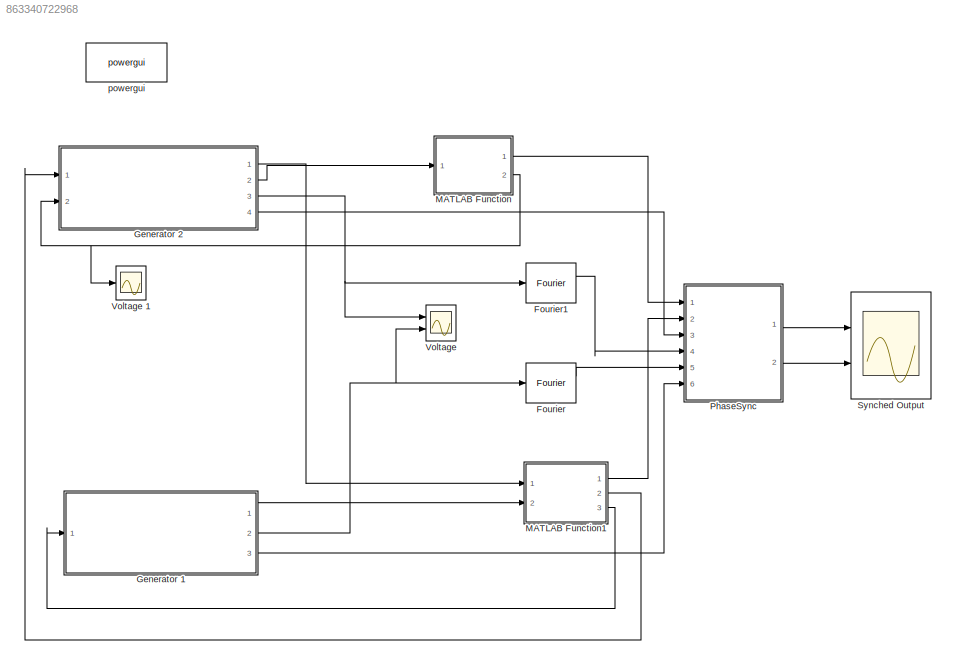
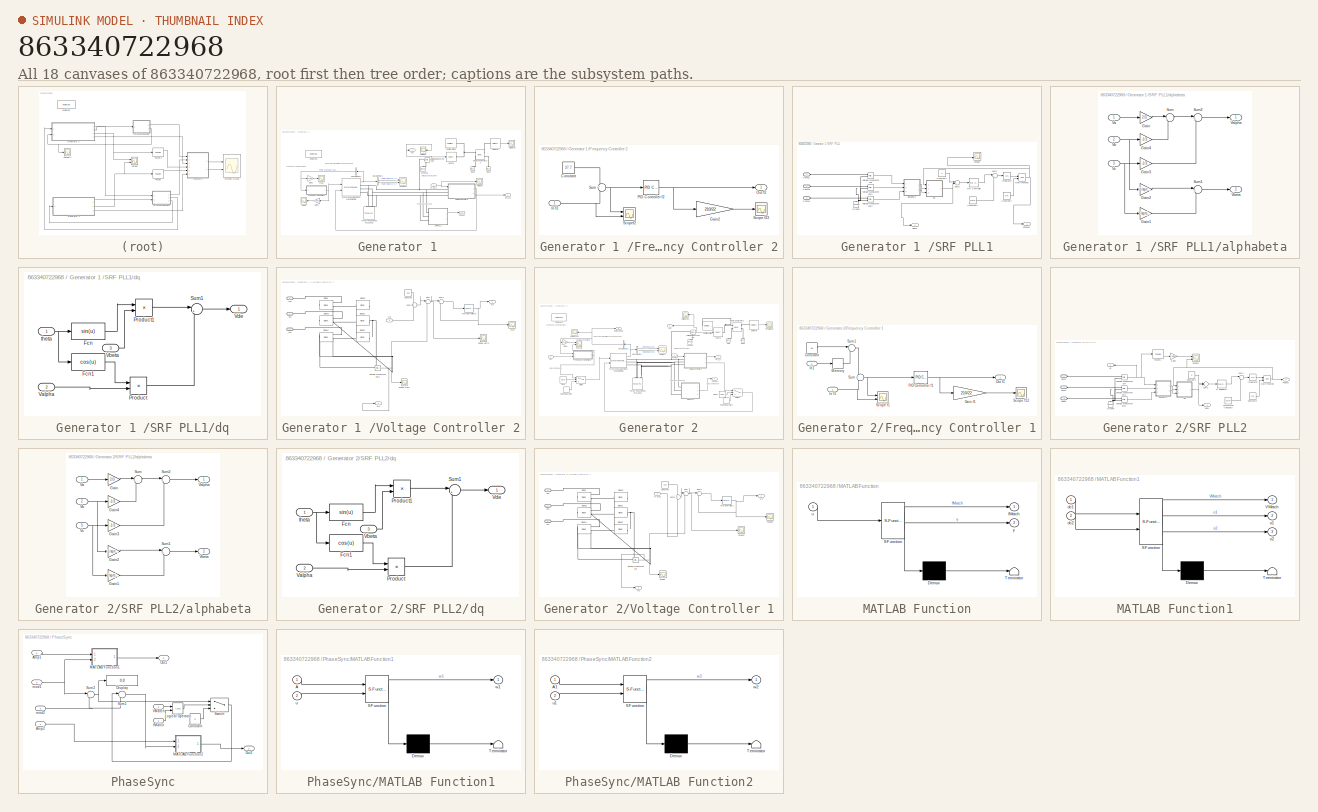
[diagram: thumbnail index - all 18 canvases of the model, root first then tree order]
MODEL slx_863340722968
KIND model
CONFIG AbsTol = auto
CONFIG EnableMultiTasking = off
CONFIG FixedStep = auto
CONFIG MaxStep = 1e-4
CONFIG MinStep = auto
CONFIG RelTol = 1e-3
CONFIG SampleTimeConstraint = Unconstrained
CONFIG Solver = VariableStepAuto
CONFIG SolverName = VariableStepAuto
CONFIG StartTime = 0.0
CONFIG StopTime = 50
BLOCK [Reference] Fourier  REF=powerlib_meascontrol/Measurements/Fourier
  Ports = [1, 2]
  SourceBlock = powerlib_meascontrol/Measurements/Fourier
  SourceProductBaseCode = PS
  SourceProductName = Simscape Power Systems
  SourceType = Fourier
BLOCK [Reference] Fourier1  REF=powerlib_meascontrol/Measurements/Fourier
  Ports = [1, 2]
  SourceBlock = powerlib_meascontrol/Measurements/Fourier
  SourceProductBaseCode = PS
  SourceProductName = Simscape Power Systems
  SourceType = Fourier
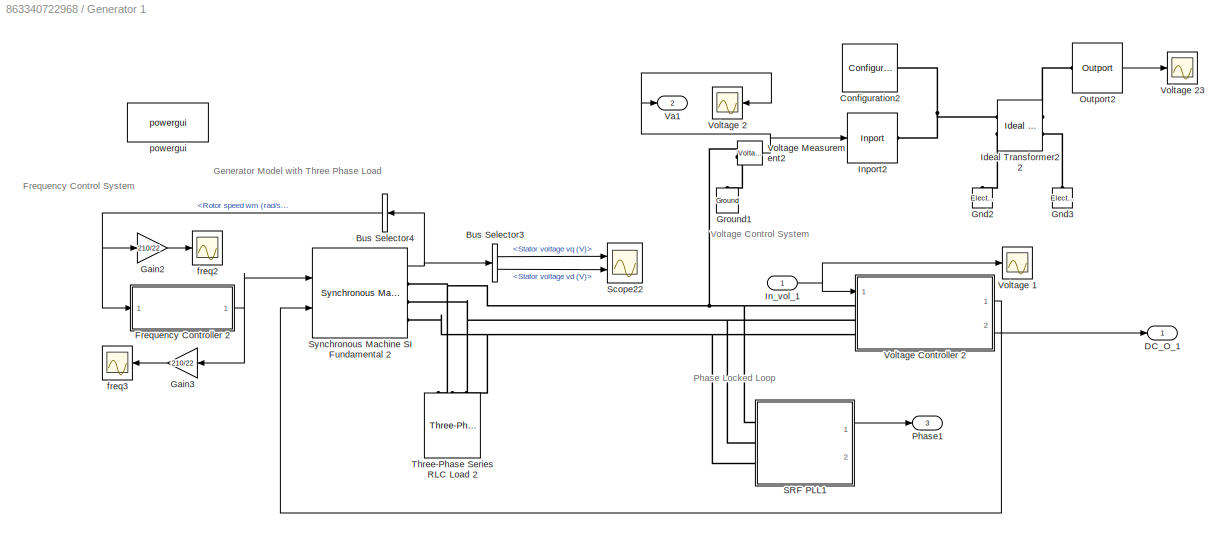
BLOCK [SubSystem] Generator 1 
  Ports = [1, 3]
  RequestExecContextInheritance = off
  Variant = off
BLOCK [BusSelector] Generator 1 /Bus Selector3
  OutputAsBus = off
  OutputSignals = dq0 components.Stator voltage  vq (V),dq0 components.Stator voltage  vd (V)
  Ports = [1, 2]
BLOCK [BusSelector] Generator 1 /Bus Selector4
  OutputAsBus = off
  OutputSignals = Mechanical.Rotor speed  wm (rad/s)
  Ports = [1, 1]
BLOCK [Reference] Generator 1 /Configuration2  REF=simrfV2util1/Configuration
  Ports = [0, 0, 0, 0, 0, 1]
  SourceBlock = simrfV2util1/Configuration
  SourceProductBaseCode = RB
  SourceProductName = SimRF
  SourceType = Configuration
BLOCK [Outport] Generator 1 /DC_O_1 
  IconDisplay = Port number
BLOCK [SubSystem] Generator 1 /Frequency Controller 2
  Ports = [1, 1]
  RequestExecContextInheritance = off
  Variant = off
BLOCK [Constant] Generator 1 /Frequency Controller 2/Constant
  Value = 37.7
BLOCK [Gain] Generator 1 /Frequency Controller 2/Gain2
  Gain = 210/22
  OutDataTypeStr = Inherit: Inherit via internal rule
  ParamDataTypeStr = Inherit: Inherit via internal rule
  SaturateOnIntegerOverflow = off
BLOCK [Inport] Generator 1 /Frequency Controller 2/In f2
  IconDisplay = Port number
BLOCK [Outport] Generator 1 /Frequency Controller 2/Out f2
  IconDisplay = Port number
BLOCK [Reference] Generator 1 /Frequency Controller 2/PID Controller f2  REF=simulink/Continuous/PID Controller
  Ports = [1, 1]
  SourceBlock = simulink/Continuous/PID Controller
  SourceProductBaseCode = SL
  SourceProductName = Simulink
  SourceType = PID 1dof
BLOCK [Scope] Generator 1 /Frequency Controller 2/Scope f22
  NumInputPorts = 1
  Ports = [1]
  ScopeSpecificationString = Simulink.scopes.TimeScopeBlockCfg('CurrentConfiguration', extmgr.ConfigurationSet(extmgr.Configuration('Core','General UI',true),extmgr.Configuration('Core','Source UI',true),extmgr.Configuration('Sources','WiredSimulink',true,'DataLoggingVariableName','ScopeData1'),extmgr.Configuration('Visuals','Time Domain',true,'SerializedDisplays',{struct('MinYLimReal','-7.45272','MaxYLimReal','67.13413','YLa...<+1368ch>
BLOCK [Scope] Generator 1 /Frequency Controller 2/Scopef2
  NumInputPorts = 2
  Ports = [2]
  ScopeSpecificationString = Simulink.scopes.TimeScopeBlockCfg('CurrentConfiguration', extmgr.ConfigurationSet(extmgr.Configuration('Core','General UI',true),extmgr.Configuration('Core','Source UI',true),extmgr.Configuration('Sources','WiredSimulink',true,'DataLoggingVariableName','ScopeData2'),extmgr.Configuration('Visuals','Time Domain',true,'SerializedDisplays',{struct('MinYLimReal','-0.78339','MaxYLimReal','7.03339','YLab...<+1753ch>
BLOCK [Sum] Generator 1 /Frequency Controller 2/Sum
  IconShape = round
  InputSameDT = off
  Inputs = +-
  OutDataTypeStr = Inherit: Inherit via internal rule
  Ports = [2, 1]
  SaturateOnIntegerOverflow = off
BLOCK [Gain] Generator 1 /Gain2
  Gain = 210/22
  OutDataTypeStr = Inherit: Inherit via internal rule
  ParamDataTypeStr = Inherit: Inherit via internal rule
  SaturateOnIntegerOverflow = off
BLOCK [Gain] Generator 1 /Gain3
  Gain = 210/22
  OutDataTypeStr = Inherit: Inherit via internal rule
  ParamDataTypeStr = Inherit: Inherit via internal rule
  SaturateOnIntegerOverflow = off
BLOCK [Reference] Generator 1 /Gnd2  REF=simrfV2_lib/Elements/Electrical Reference
  Ports = [0, 0, 0, 0, 0, 1]
  SourceBlock = simrfV2_lib/Elements/Electrical Reference
  SourceType = Electrical Reference
BLOCK [Reference] Generator 1 /Gnd3  REF=simrfV2_lib/Elements/Electrical Reference
  Ports = [0, 0, 0, 0, 0, 1]
  SourceBlock = simrfV2_lib/Elements/Electrical Reference
  SourceType = Electrical Reference
BLOCK [Reference] Generator 1 /Ground1  REF=powerlib/Elements/Ground
  Ports = [0, 0, 0, 0, 0, 1]
  SourceBlock = powerlib/Elements/Ground
  SourceProductBaseCode = PS
  SourceProductName = Simscape Power Systems
  SourceType = Ground
BLOCK [Reference] Generator 1 /Ideal Transformer22  REF=simrfV2_lib/Elements/Ideal
Transformer
  Ports = [0, 0, 0, 0, 0, 2, 2]
  SourceBlock = simrfV2_lib/Elements/Ideal\nTransformer
  SourceType = Ideal\nTransformer
BLOCK [Inport] Generator 1 /In_vol_1 
  IconDisplay = Port number
BLOCK [Reference] Generator 1 /Inport2  REF=simrfV2util1/Inport
  Ports = [1, 0, 0, 0, 0, 0, 1]
  SourceBlock = simrfV2util1/Inport
  SourceProductBaseCode = RB
  SourceProductName = SimRF
  SourceType = Inport
BLOCK [Reference] Generator 1 /Outport2  REF=simrfV2util1/Outport
  Ports = [0, 1, 0, 0, 0, 1]
  SourceBlock = simrfV2util1/Outport
  SourceProductBaseCode = RB
  SourceProductName = SimRF
  SourceType = Outport
BLOCK [Outport] Generator 1 /Phase1
  IconDisplay = Port number
  Port = 3
BLOCK [SubSystem] Generator 1 /SRF PLL1
  Ports = [0, 2, 0, 0, 0, 3]
  RequestExecContextInheritance = off
  Variant = off
BLOCK [PMIOPort] Generator 1 /SRF PLL1/Conn11
  Port = 1
  Side = Left
BLOCK [PMIOPort] Generator 1 /SRF PLL1/Conn12
  Port = 2
  Side = Left
BLOCK [PMIOPort] Generator 1 /SRF PLL1/Conn13
  Port = 3
  Side = Left
BLOCK [Constant] Generator 1 /SRF PLL1/Constant1
  Value = 0
BLOCK [Constant] Generator 1 /SRF PLL1/Constant2
  Value = 120*pi
BLOCK [Constant] Generator 1 /SRF PLL1/Constant3
  Value = 2*pi
BLOCK [Reference] Generator 1 /SRF PLL1/Ground  REF=powerlib/Elements/Ground
  Ports = [0, 0, 0, 0, 0, 1]
  SourceBlock = powerlib/Elements/Ground
  SourceProductBaseCode = PS
  SourceProductName = Simscape Power Systems
  SourceType = Ground
BLOCK [Integrator] Generator 1 /SRF PLL1/Integrator
  Ports = [1, 1]
BLOCK [Math] Generator 1 /SRF PLL1/Math Function
  Operator = mod
  Ports = [2, 1]
BLOCK [Reference] Generator 1 /SRF PLL1/PID Controller  REF=simulink/Continuous/PID Controller
  Ports = [1, 1]
  SourceBlock = simulink/Continuous/PID Controller
  SourceProductBaseCode = SL
  SourceProductName = Simulink
  SourceType = PID 1dof
BLOCK [Outport] Generator 1 /SRF PLL1/Phase11
  IconDisplay = Port number
BLOCK [Scope] Generator 1 /SRF PLL1/Scope1
  NumInputPorts = 2
  Ports = [2]
  ScopeSpecificationString = Simulink.scopes.TimeScopeBlockCfg('CurrentConfiguration', extmgr.ConfigurationSet(extmgr.Configuration('Core','General UI',true),extmgr.Configuration('Core','Source UI',true),extmgr.Configuration('Sources','WiredSimulink',true),extmgr.Configuration('Visuals','Time Domain',true,'SerializedDisplays',{struct('MinYLimReal','-190.00196','MaxYLimReal','1710.0176','YLabelReal','','MinYLimMag',' 0.00000',...<+1477ch>
BLOCK [Sum] Generator 1 /SRF PLL1/Sum1
  IconShape = round
  InputSameDT = off
  Inputs = |++
  OutDataTypeStr = Inherit: Inherit via internal rule
  Ports = [2, 1]
  SaturateOnIntegerOverflow = off
BLOCK [Sum] Generator 1 /SRF PLL1/Sum2
  IconShape = round
  InputSameDT = off
  Inputs = |+-
  OutDataTypeStr = Inherit: Inherit via internal rule
  Ports = [2, 1]
  SaturateOnIntegerOverflow = off
BLOCK [Outport] Generator 1 /SRF PLL1/Vde11
  IconDisplay = Port number
  Port = 2
BLOCK [Reference] Generator 1 /SRF PLL1/Voltage Measurement  REF=powerlib/Measurements/Voltage Measurement
  Ports = [0, 1, 0, 0, 0, 2]
  SourceBlock = powerlib/Measurements/Voltage Measurement
  SourceProductBaseCode = PS
  SourceProductName = Simscape Power Systems
  SourceType = Voltage Measurement
  UserDataPersistent = on
BLOCK [Reference] Generator 1 /SRF PLL1/Voltage Measurement1  REF=powerlib/Measurements/Voltage Measurement
  Ports = [0, 1, 0, 0, 0, 2]
  SourceBlock = powerlib/Measurements/Voltage Measurement
  SourceProductBaseCode = PS
  SourceProductName = Simscape Power Systems
  SourceType = Voltage Measurement
  UserDataPersistent = on
BLOCK [Reference] Generator 1 /SRF PLL1/Voltage Measurement2  REF=powerlib/Measurements/Voltage Measurement
  Ports = [0, 1, 0, 0, 0, 2]
  SourceBlock = powerlib/Measurements/Voltage Measurement
  SourceProductBaseCode = PS
  SourceProductName = Simscape Power Systems
  SourceType = Voltage Measurement
  UserDataPersistent = on
BLOCK [SubSystem] Generator 1 /SRF PLL1/alphabeta
  Ports = [3, 2]
  RequestExecContextInheritance = off
  Variant = off
BLOCK [Gain] Generator 1 /SRF PLL1/alphabeta/Gain
  Gain = 2/3
  OutDataTypeStr = Inherit: Inherit via internal rule
  ParamDataTypeStr = Inherit: Inherit via internal rule
  SaturateOnIntegerOverflow = off
BLOCK [Gain] Generator 1 /SRF PLL1/alphabeta/Gain1
  Gain = 1/sqrt(3)
  OutDataTypeStr = Inherit: Inherit via internal rule
  ParamDataTypeStr = Inherit: Inherit via internal rule
  SaturateOnIntegerOverflow = off
BLOCK [Gain] Generator 1 /SRF PLL1/alphabeta/Gain2
  Gain = -1/sqrt(3)
  OutDataTypeStr = Inherit: Inherit via internal rule
  ParamDataTypeStr = Inherit: Inherit via internal rule
  SaturateOnIntegerOverflow = off
BLOCK [Gain] Generator 1 /SRF PLL1/alphabeta/Gain3
  Gain = -1/3
  OutDataTypeStr = Inherit: Inherit via internal rule
  ParamDataTypeStr = Inherit: Inherit via internal rule
  SaturateOnIntegerOverflow = off
BLOCK [Gain] Generator 1 /SRF PLL1/alphabeta/Gain4
  Gain = -1/3
  OutDataTypeStr = Inherit: Inherit via internal rule
  ParamDataTypeStr = Inherit: Inherit via internal rule
  SaturateOnIntegerOverflow = off
BLOCK [Sum] Generator 1 /SRF PLL1/alphabeta/Sum
  IconShape = round
  InputSameDT = off
  Inputs = |++
  OutDataTypeStr = Inherit: Inherit via internal rule
  Ports = [2, 1]
  SaturateOnIntegerOverflow = off
BLOCK [Sum] Generator 1 /SRF PLL1/alphabeta/Sum1
  IconShape = round
  InputSameDT = off
  Inputs = |++
  OutDataTypeStr = Inherit: Inherit via internal rule
  Ports = [2, 1]
  SaturateOnIntegerOverflow = off
BLOCK [Sum] Generator 1 /SRF PLL1/alphabeta/Sum2
  IconShape = round
  InputSameDT = off
  Inputs = |++
  OutDataTypeStr = Inherit: Inherit via internal rule
  Ports = [2, 1]
  SaturateOnIntegerOverflow = off
BLOCK [Inport] Generator 1 /SRF PLL1/alphabeta/Va
  IconDisplay = Port number
BLOCK [Outport] Generator 1 /SRF PLL1/alphabeta/Valpha
  IconDisplay = Port number
BLOCK [Inport] Generator 1 /SRF PLL1/alphabeta/Vb
  IconDisplay = Port number
  Port = 2
BLOCK [Outport] Generator 1 /SRF PLL1/alphabeta/Vbeta
  IconDisplay = Port number
  Port = 2
BLOCK [Inport] Generator 1 /SRF PLL1/alphabeta/Vc
  IconDisplay = Port number
  Port = 3
BLOCK [SubSystem] Generator 1 /SRF PLL1/dq
  Ports = [3, 1]
  RequestExecContextInheritance = off
  Variant = off
BLOCK [Fcn] Generator 1 /SRF PLL1/dq/Fcn
  Expr = sin(u)
BLOCK [Fcn] Generator 1 /SRF PLL1/dq/Fcn1
  Expr = cos(u)
BLOCK [Product] Generator 1 /SRF PLL1/dq/Product
  InputSameDT = off
  OutDataTypeStr = Inherit: Inherit via internal rule
  Ports = [2, 1]
  RndMeth = Floor
  SaturateOnIntegerOverflow = off
BLOCK [Product] Generator 1 /SRF PLL1/dq/Product1
  InputSameDT = off
  OutDataTypeStr = Inherit: Inherit via internal rule
  Ports = [2, 1]
  RndMeth = Floor
  SaturateOnIntegerOverflow = off
BLOCK [Sum] Generator 1 /SRF PLL1/dq/Sum1
  IconShape = round
  InputSameDT = off
  Inputs = |+-
  OutDataTypeStr = Inherit: Inherit via internal rule
  Ports = [2, 1]
  SaturateOnIntegerOverflow = off
BLOCK [Inport] Generator 1 /SRF PLL1/dq/Valpha
  IconDisplay = Port number
  Port = 2
BLOCK [Inport] Generator 1 /SRF PLL1/dq/Vbeta
  IconDisplay = Port number
  Port = 3
BLOCK [Outport] Generator 1 /SRF PLL1/dq/Vde
  IconDisplay = Port number
BLOCK [Inport] Generator 1 /SRF PLL1/dq/theta
  IconDisplay = Port number
BLOCK [Scope] Generator 1 /Scope22
  NumInputPorts = 2
  Ports = [2]
  ScopeSpecificationString = Simulink.scopes.TimeScopeBlockCfg('CurrentConfiguration', extmgr.ConfigurationSet(extmgr.Configuration('Core','General UI',true),extmgr.Configuration('Core','Source UI',true),extmgr.Configuration('Sources','WiredSimulink',true,'DataLoggingVariableName','ScopeData2'),extmgr.Configuration('Visuals','Time Domain',true,'SerializedDisplays',{struct('MinYLimReal','-10492814620799703000000000000000000000...<+2122ch>
BLOCK [Reference] Generator 1 /Synchronous Machine SI Fundamental 2  REF=powerlib/Machines/Synchronous Machine
SI Fundamental
  Ports = [2, 1, 0, 0, 0, 0, 3]
  SourceBlock = powerlib/Machines/Synchronous Machine\nSI Fundamental
  SourceProductBaseCode = PS
  SourceProductName = Simscape Power Systems
  SourceType = Synchronous Machine
BLOCK [Reference] Generator 1 /Three-Phase Series RLC Load 2  REF=powerlib/Elements/Three-Phase
Series RLC Load
  AttributesFormatString = \n
  Ports = [0, 0, 0, 0, 0, 3]
  SourceBlock = powerlib/Elements/Three-Phase\nSeries RLC Load
  SourceProductBaseCode = PS
  SourceProductName = Simscape Power Systems
  SourceType = Three-Phase Series RLC Load
BLOCK [Outport] Generator 1 /Va1 
  IconDisplay = Port number
  Port = 2
BLOCK [Scope] Generator 1 /Voltage 1
  NumInputPorts = 1
  Ports = [1]
  ScopeSpecificationString = Simulink.scopes.TimeScopeBlockCfg('CurrentConfiguration', extmgr.ConfigurationSet(extmgr.Configuration('Core','General UI',true),extmgr.Configuration('Core','Source UI',true),extmgr.Configuration('Sources','WiredSimulink',true,'DataLoggingVariableName','ScopeData1'),extmgr.Configuration('Visuals','Time Domain',true,'SerializedDisplays',{struct('MinYLimReal','-1.00000','MaxYLimReal','1.00000','YLab...<+2013ch>
BLOCK [Scope] Generator 1 /Voltage 2
  NumInputPorts = 1
  Ports = [1]
  ScopeSpecificationString = Simulink.scopes.TimeScopeBlockCfg('CurrentConfiguration', extmgr.ConfigurationSet(extmgr.Configuration('Core','General UI',true),extmgr.Configuration('Core','Source UI',true),extmgr.Configuration('Sources','WiredSimulink',true,'DataLoggingVariableName','ScopeData3'),extmgr.Configuration('Visuals','Time Domain',true,'SerializedDisplays',{struct('MinYLimReal','-193.25963','MaxYLimReal','193.2667','Y...<+1825ch>
BLOCK [Scope] Generator 1 /Voltage 23
  NumInputPorts = 1
  Ports = [1]
  ScopeSpecificationString = Simulink.scopes.TimeScopeBlockCfg('CurrentConfiguration', extmgr.ConfigurationSet(extmgr.Configuration('Core','General UI',true),extmgr.Configuration('Core','Source UI',true),extmgr.Configuration('Sources','WiredSimulink',true,'DataLoggingVariableName','ScopeData4'),extmgr.Configuration('Visuals','Time Domain',true,'SerializedDisplays',{struct('MinYLimReal','-21.15422','MaxYLimReal','21.15422','YL...<+2101ch>
BLOCK [SubSystem] Generator 1 /Voltage Controller 2
  Ports = [1, 2, 0, 0, 0, 3]
  RequestExecContextInheritance = off
  Variant = off
BLOCK [Constant] Generator 1 /Voltage Controller 2/Constant
  Value = 363
BLOCK [Reference] Generator 1 /Voltage Controller 2/Diode  REF=powerlib/Power
Electronics/Diode
  Ports = [0, 1, 0, 0, 0, 1, 1]
  SourceBlock = powerlib/Power\nElectronics/Diode
  SourceProductBaseCode = PS
  SourceProductName = Simscape Power Systems
  SourceType = Diode
BLOCK [Reference] Generator 1 /Voltage Controller 2/Diode1  REF=powerlib/Power
Electronics/Diode
  Ports = [0, 1, 0, 0, 0, 1, 1]
  SourceBlock = powerlib/Power\nElectronics/Diode
  SourceProductBaseCode = PS
  SourceProductName = Simscape Power Systems
  SourceType = Diode
BLOCK [Reference] Generator 1 /Voltage Controller 2/Diode2  REF=powerlib/Power
Electronics/Diode
  Ports = [0, 1, 0, 0, 0, 1, 1]
  SourceBlock = powerlib/Power\nElectronics/Diode
  SourceProductBaseCode = PS
  SourceProductName = Simscape Power Systems
  SourceType = Diode
BLOCK [Reference] Generator 1 /Voltage Controller 2/Diode3  REF=powerlib/Power
Electronics/Diode
  Ports = [0, 1, 0, 0, 0, 1, 1]
  SourceBlock = powerlib/Power\nElectronics/Diode
  SourceProductBaseCode = PS
  SourceProductName = Simscape Power Systems
  SourceType = Diode
BLOCK [Reference] Generator 1 /Voltage Controller 2/Diode4  REF=powerlib/Power
Electronics/Diode
  Ports = [0, 1, 0, 0, 0, 1, 1]
  SourceBlock = powerlib/Power\nElectronics/Diode
  SourceProductBaseCode = PS
  SourceProductName = Simscape Power Systems
  SourceType = Diode
BLOCK [Reference] Generator 1 /Voltage Controller 2/Diode5  REF=powerlib/Power
Electronics/Diode
  Ports = [0, 1, 0, 0, 0, 1, 1]
  SourceBlock = powerlib/Power\nElectronics/Diode
  SourceProductBaseCode = PS
  SourceProductName = Simscape Power Systems
  SourceType = Diode
BLOCK [Inport] Generator 1 /Voltage Controller 2/In1
  IconDisplay = Port number
BLOCK [Reference] Generator 1 /Voltage Controller 2/PID Controllerv2  REF=simulink/Continuous/PID Controller
  Ports = [1, 1]
  SourceBlock = simulink/Continuous/PID Controller
  SourceProductBaseCode = SL
  SourceProductName = Simulink
  SourceType = PID 1dof
BLOCK [Scope] Generator 1 /Voltage Controller 2/Scope Verr2
  NumInputPorts = 1
  Ports = [1]
  ScopeSpecificationString = Simulink.scopes.TimeScopeBlockCfg('CurrentConfiguration', extmgr.ConfigurationSet(extmgr.Configuration('Core','General UI',true),extmgr.Configuration('Core','Source UI',true),extmgr.Configuration('Sources','WiredSimulink',true,'DataLoggingVariableName','ScopeData3'),extmgr.Configuration('Visuals','Time Domain',true,'SerializedDisplays',{struct('MinYLimReal','-15.60796','MaxYLimReal','405.06755','Y...<+1502ch>
BLOCK [Scope] Generator 1 /Voltage Controller 2/Scope Vrect
  NumInputPorts = 1
  Ports = [1]
  ScopeSpecificationString = Simulink.scopes.TimeScopeBlockCfg('CurrentConfiguration', extmgr.ConfigurationSet(extmgr.Configuration('Core','General UI',true),extmgr.Configuration('Core','Source UI',true),extmgr.Configuration('Sources','WiredSimulink',true,'DataLoggingVariableName','ScopeData2'),extmgr.Configuration('Visuals','Time Domain',true,'SerializedDisplays',{struct('MinYLimReal','-42.06755','MaxYLimReal','378.60796','Y...<+1989ch>
BLOCK [Sum] Generator 1 /Voltage Controller 2/Sum
  IconShape = round
  InputSameDT = off
  Inputs = +-
  OutDataTypeStr = Inherit: Inherit via internal rule
  Ports = [2, 1]
  SaturateOnIntegerOverflow = off
BLOCK [Sum] Generator 1 /Voltage Controller 2/Sum1
  IconShape = round
  InputSameDT = off
  Inputs = +-
  OutDataTypeStr = Inherit: Inherit via internal rule
  Ports = [2, 1]
  SaturateOnIntegerOverflow = off
BLOCK [Sum] Generator 1 /Voltage Controller 2/Sum2
  IconShape = round
  InputSameDT = off
  OutDataTypeStr = Inherit: Inherit via internal rule
  Ports = [2, 1]
  SaturateOnIntegerOverflow = off
BLOCK [PMIOPort] Generator 1 /Voltage Controller 2/Va2
  Port = 1
  Side = Left
BLOCK [PMIOPort] Generator 1 /Voltage Controller 2/Vb2
  Port = 2
  Side = Left
BLOCK [PMIOPort] Generator 1 /Voltage Controller 2/Vc2
  Port = 3
  Side = Left
BLOCK [Outport] Generator 1 /Voltage Controller 2/Vf1
  IconDisplay = Port number
  Port = 2
BLOCK [Outport] Generator 1 /Voltage Controller 2/Vf2
  IconDisplay = Port number
BLOCK [Scope] Generator 1 /Voltage Controller 2/Vfd2
  NumInputPorts = 1
  Ports = [1]
  ScopeSpecificationString = Simulink.scopes.TimeScopeBlockCfg('CurrentConfiguration', extmgr.ConfigurationSet(extmgr.Configuration('Core','General UI',true),extmgr.Configuration('Core','Source UI',true),extmgr.Configuration('Sources','WiredSimulink',true,'DataLoggingVariableName','ScopeData4'),extmgr.Configuration('Visuals','Time Domain',true,'SerializedDisplays',{struct('MinYLimReal','-43.41925','MaxYLimReal','390.77324','Y...<+1826ch>
BLOCK [Reference] Generator 1 /Voltage Controller 2/Voltage Measurement2  REF=powerlib/Measurements/Voltage Measurement
  Ports = [0, 1, 0, 0, 0, 2]
  SourceBlock = powerlib/Measurements/Voltage Measurement
  SourceProductBaseCode = PS
  SourceProductName = Simscape Power Systems
  SourceType = Voltage Measurement
  UserDataPersistent = on
BLOCK [Reference] Generator 1 /Voltage Measurement2  REF=powerlib/Measurements/Voltage Measurement
  Ports = [0, 1, 0, 0, 0, 2]
  SourceBlock = powerlib/Measurements/Voltage Measurement
  SourceProductBaseCode = PS
  SourceProductName = Simscape Power Systems
  SourceType = Voltage Measurement
  UserDataPersistent = on
BLOCK [Scope] Generator 1 /freq2
  NumInputPorts = 1
  Ports = [1]
  ScopeSpecificationString = Simulink.scopes.TimeScopeBlockCfg('CurrentConfiguration', extmgr.ConfigurationSet(extmgr.Configuration('Core','General UI',true),extmgr.Configuration('Core','Source UI',true),extmgr.Configuration('Sources','WiredSimulink',true,'DataLoggingVariableName','ScopeData5'),extmgr.Configuration('Visuals','Time Domain',true,'SerializedDisplays',{struct('MinYLimReal','-44.94247','MaxYLimReal','404.84209','Y...<+1718ch>
BLOCK [Scope] Generator 1 /freq3
  NumInputPorts = 1
  Ports = [1]
  ScopeSpecificationString = Simulink.scopes.TimeScopeBlockCfg('CurrentConfiguration', extmgr.ConfigurationSet(extmgr.Configuration('Core','General UI',true),extmgr.Configuration('Core','Source UI',true),extmgr.Configuration('Sources','WiredSimulink',true,'DataLoggingVariableName','ScopeData6'),extmgr.Configuration('Visuals','Time Domain',true,'SerializedDisplays',{struct('MinYLimReal','-7.45272','MaxYLimReal','67.13413','YLa...<+1697ch>
BLOCK [Reference] Generator 1 /powergui  REF=powerlib/powergui
  Ports = []
  Priority = 1
  SourceBlock = powerlib/powergui
  SourceProductBaseCode = PS
  SourceProductName = Simscape Power Systems
  SourceType = PSB option menu block
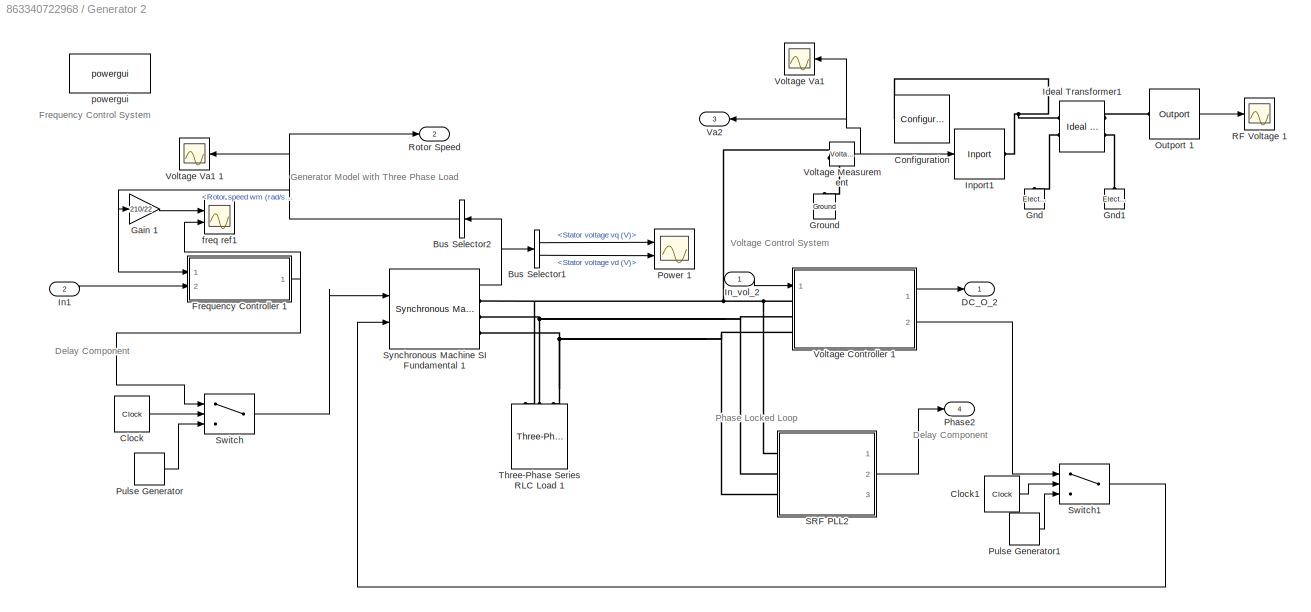
BLOCK [SubSystem] Generator 2
  Ports = [2, 4]
  RequestExecContextInheritance = off
  Variant = off
BLOCK [BusSelector] Generator 2/Bus Selector1
  OutputAsBus = off
  OutputSignals = dq0 components.Stator voltage  vq (V),dq0 components.Stator voltage  vd (V)
  Ports = [1, 2]
BLOCK [BusSelector] Generator 2/Bus Selector2
  OutputAsBus = off
  OutputSignals = Mechanical.Rotor speed  wm (rad/s)
  Ports = [1, 1]
BLOCK [Clock] Generator 2/Clock
  DisplayTime = on
BLOCK [Clock] Generator 2/Clock1
  DisplayTime = on
BLOCK [Reference] Generator 2/Configuration  REF=simrfV2util1/Configuration
  Ports = [0, 0, 0, 0, 0, 1]
  SourceBlock = simrfV2util1/Configuration
  SourceProductBaseCode = RB
  SourceProductName = SimRF
  SourceType = Configuration
BLOCK [Outport] Generator 2/DC_O_2
  IconDisplay = Port number
BLOCK [SubSystem] Generator 2/Frequency Controller 1
  Ports = [2, 1]
  RequestExecContextInheritance = off
  Variant = off
BLOCK [Constant] Generator 2/Frequency Controller 1/Constant
  Value = 36
BLOCK [Gain] Generator 2/Frequency Controller 1/Gain f1
  Gain = 210/22
  OutDataTypeStr = Inherit: Inherit via internal rule
  ParamDataTypeStr = Inherit: Inherit via internal rule
  SaturateOnIntegerOverflow = off
BLOCK [Inport] Generator 2/Frequency Controller 1/In f1
  IconDisplay = Port number
BLOCK [Inport] Generator 2/Frequency Controller 1/In1
  IconDisplay = Port number
  Port = 2
BLOCK [Memory] Generator 2/Frequency Controller 1/Memory
BLOCK [Outport] Generator 2/Frequency Controller 1/Out f1
  IconDisplay = Port number
BLOCK [Reference] Generator 2/Frequency Controller 1/PID Controller f1  REF=simulink/Continuous/PID Controller
  Ports = [1, 1]
  SourceBlock = simulink/Continuous/PID Controller
  SourceProductBaseCode = SL
  SourceProductName = Simulink
  SourceType = PID 1dof
BLOCK [Scope] Generator 2/Frequency Controller 1/Scope f1
  NumInputPorts = 2
  Ports = [2]
  ScopeSpecificationString = Simulink.scopes.TimeScopeBlockCfg('CurrentConfiguration', extmgr.ConfigurationSet(extmgr.Configuration('Core','General UI',true),extmgr.Configuration('Core','Source UI',true),extmgr.Configuration('Sources','WiredSimulink',true,'DataLoggingVariableName','ScopeData2'),extmgr.Configuration('Visuals','Time Domain',true,'SerializedDisplays',{struct('MinYLimReal','-0.78339','MaxYLimReal','7.03339','YLab...<+1753ch>
BLOCK [Scope] Generator 2/Frequency Controller 1/Scope f12
  NumInputPorts = 1
  Ports = [1]
  ScopeSpecificationString = Simulink.scopes.TimeScopeBlockCfg('CurrentConfiguration', extmgr.ConfigurationSet(extmgr.Configuration('Core','General UI',true),extmgr.Configuration('Core','Source UI',true),extmgr.Configuration('Sources','WiredSimulink',true,'DataLoggingVariableName','ScopeData1'),extmgr.Configuration('Visuals','Time Domain',true,'SerializedDisplays',{struct('MinYLimReal','-7.45272','MaxYLimReal','67.13413','YLa...<+1368ch>
BLOCK [Sum] Generator 2/Frequency Controller 1/Sum
  IconShape = round
  InputSameDT = off
  Inputs = +-
  OutDataTypeStr = Inherit: Inherit via internal rule
  Ports = [2, 1]
  SaturateOnIntegerOverflow = off
BLOCK [Sum] Generator 2/Frequency Controller 1/Sum1
  IconShape = round
  InputSameDT = off
  Inputs = |++
  OutDataTypeStr = Inherit: Inherit via internal rule
  Ports = [2, 1]
  SaturateOnIntegerOverflow = off
BLOCK [Gain] Generator 2/Gain 1
  Gain = 210/22
  OutDataTypeStr = Inherit: Inherit via internal rule
  ParamDataTypeStr = Inherit: Inherit via internal rule
  SaturateOnIntegerOverflow = off
BLOCK [Reference] Generator 2/Gnd  REF=simrfV2_lib/Elements/Electrical Reference
  Ports = [0, 0, 0, 0, 0, 1]
  SourceBlock = simrfV2_lib/Elements/Electrical Reference
  SourceType = Electrical Reference
BLOCK [Reference] Generator 2/Gnd1  REF=simrfV2_lib/Elements/Electrical Reference
  Ports = [0, 0, 0, 0, 0, 1]
  SourceBlock = simrfV2_lib/Elements/Electrical Reference
  SourceType = Electrical Reference
BLOCK [Reference] Generator 2/Ground  REF=powerlib/Elements/Ground
  Ports = [0, 0, 0, 0, 0, 1]
  SourceBlock = powerlib/Elements/Ground
  SourceProductBaseCode = PS
  SourceProductName = Simscape Power Systems
  SourceType = Ground
BLOCK [Reference] Generator 2/Ideal Transformer1  REF=simrfV2_lib/Elements/Ideal
Transformer
  Ports = [0, 0, 0, 0, 0, 2, 2]
  SourceBlock = simrfV2_lib/Elements/Ideal\nTransformer
  SourceType = Ideal\nTransformer
BLOCK [Inport] Generator 2/In1
  IconDisplay = Port number
  Port = 2
BLOCK [Inport] Generator 2/In_vol_2 
  IconDisplay = Port number
BLOCK [Reference] Generator 2/Inport1  REF=simrfV2util1/Inport
  Ports = [1, 0, 0, 0, 0, 0, 1]
  SourceBlock = simrfV2util1/Inport
  SourceProductBaseCode = RB
  SourceProductName = SimRF
  SourceType = Inport
BLOCK [Reference] Generator 2/Outport 1  REF=simrfV2util1/Outport
  Ports = [0, 1, 0, 0, 0, 1]
  SourceBlock = simrfV2util1/Outport
  SourceProductBaseCode = RB
  SourceProductName = SimRF
  SourceType = Outport
BLOCK [Outport] Generator 2/Phase2
  IconDisplay = Port number
  Port = 4
BLOCK [Scope] Generator 2/Power 1
  NumInputPorts = 2
  Ports = [2]
  ScopeSpecificationString = Simulink.scopes.TimeScopeBlockCfg('CurrentConfiguration', extmgr.ConfigurationSet(extmgr.Configuration('Core','General UI',true),extmgr.Configuration('Core','Source UI',true),extmgr.Configuration('Sources','WiredSimulink',true),extmgr.Configuration('Visuals','Time Domain',true,'SerializedDisplays',{struct('MinYLimReal','-10492814620799703000000000000000000000000000000000000000000000000000000000000...<+2083ch>
BLOCK [DiscretePulseGenerator] Generator 2/Pulse Generator
  Amplitude = 0
  Period = 5
  PhaseDelay = 0.5
  Ports = [0, 1]
  PulseType = Time based
  PulseWidth = 99.99
BLOCK [DiscretePulseGenerator] Generator 2/Pulse Generator1
  Amplitude = 0
  Period = 5
  PhaseDelay = 0.5
  Ports = [0, 1]
  PulseType = Time based
  PulseWidth = 99.99
BLOCK [Scope] Generator 2/RF Voltage 1
  NumInputPorts = 1
  Ports = [1]
  ScopeSpecificationString = Simulink.scopes.TimeScopeBlockCfg('CurrentConfiguration', extmgr.ConfigurationSet(extmgr.Configuration('Core','General UI',true),extmgr.Configuration('Core','Source UI',true),extmgr.Configuration('Sources','WiredSimulink',true,'DataLoggingVariableName','ScopeData1'),extmgr.Configuration('Visuals','Time Domain',true,'SerializedDisplays',{struct('MinYLimReal','-21.15473','MaxYLimReal','21.15473','YL...<+2103ch>
BLOCK [Outport] Generator 2/Rotor Speed
  IconDisplay = Port number
  Port = 2
BLOCK [SubSystem] Generator 2/SRF PLL2
  Ports = [0, 3, 0, 0, 0, 3]
  RequestExecContextInheritance = off
  Variant = off
BLOCK [PMIOPort] Generator 2/SRF PLL2/Conn1
  Port = 1
  Side = Left
BLOCK [PMIOPort] Generator 2/SRF PLL2/Conn2
  Port = 2
  Side = Left
BLOCK [PMIOPort] Generator 2/SRF PLL2/Conn3
  Port = 3
  Side = Left
BLOCK [Constant] Generator 2/SRF PLL2/Constant1
  Value = 0
BLOCK [Constant] Generator 2/SRF PLL2/Constant3
  Value = 2*pi
BLOCK [Reference] Generator 2/SRF PLL2/Fourier1  REF=powerlib_meascontrol/Measurements/Fourier
  Ports = [1, 2]
  SourceBlock = powerlib_meascontrol/Measurements/Fourier
  SourceProductBaseCode = PS
  SourceProductName = Simscape Power Systems
  SourceType = Fourier
BLOCK [Gain] Generator 2/SRF PLL2/Gain4
  Gain = 2*pi/360
  OutDataTypeStr = Inherit: Inherit via internal rule
  ParamDataTypeStr = Inherit: Inherit via internal rule
  SaturateOnIntegerOverflow = off
BLOCK [Reference] Generator 2/SRF PLL2/Ground  REF=powerlib/Elements/Ground
  Ports = [0, 0, 0, 0, 0, 1]
  SourceBlock = powerlib/Elements/Ground
  SourceProductBaseCode = PS
  SourceProductName = Simscape Power Systems
  SourceType = Ground
BLOCK [Integrator] Generator 2/SRF PLL2/Integrator
  Ports = [1, 1]
BLOCK [Math] Generator 2/SRF PLL2/Math Function
  Operator = mod
  Ports = [2, 1]
BLOCK [Reference] Generator 2/SRF PLL2/PI Regulator  REF=simulink/Continuous/PID Controller
  Ports = [1, 1]
  SourceBlock = simulink/Continuous/PID Controller
  SourceProductBaseCode = SL
  SourceProductName = Simulink
  SourceType = PID 1dof
BLOCK [Outport] Generator 2/SRF PLL2/Phase1
  IconDisplay = Port number
  Port = 2
BLOCK [Scope] Generator 2/SRF PLL2/Scope2
  NumInputPorts = 2
  Ports = [2]
  ScopeSpecificationString = Simulink.scopes.TimeScopeBlockCfg('CurrentConfiguration', extmgr.ConfigurationSet(extmgr.Configuration('Core','General UI',true),extmgr.Configuration('Core','Source UI',true),extmgr.Configuration('Sources','WiredSimulink',true,'DataLoggingVariableName','ScopeData1'),extmgr.Configuration('Visuals','Time Domain',true,'SerializedDisplays',{struct('MinYLimReal','-4.31961','MaxYLimReal','7.46088','YLab...<+1522ch>
BLOCK [Sum] Generator 2/SRF PLL2/Sum1
  IconShape = round
  InputSameDT = off
  Inputs = |++
  OutDataTypeStr = Inherit: Inherit via internal rule
  Ports = [2, 1]
  SaturateOnIntegerOverflow = off
BLOCK [Sum] Generator 2/SRF PLL2/Sum2
  IconShape = round
  InputSameDT = off
  Inputs = |+-
  OutDataTypeStr = Inherit: Inherit via internal rule
  Ports = [2, 1]
  SaturateOnIntegerOverflow = off
BLOCK [Outport] Generator 2/SRF PLL2/Va'
  IconDisplay = Port number
BLOCK [Outport] Generator 2/SRF PLL2/Vde1
  IconDisplay = Port number
  Port = 3
BLOCK [Reference] Generator 2/SRF PLL2/Voltage Measurement  REF=powerlib/Measurements/Voltage Measurement
  Ports = [0, 1, 0, 0, 0, 2]
  SourceBlock = powerlib/Measurements/Voltage Measurement
  SourceProductBaseCode = PS
  SourceProductName = Simscape Power Systems
  SourceType = Voltage Measurement
  UserDataPersistent = on
BLOCK [Reference] Generator 2/SRF PLL2/Voltage Measurement1  REF=powerlib/Measurements/Voltage Measurement
  Ports = [0, 1, 0, 0, 0, 2]
  SourceBlock = powerlib/Measurements/Voltage Measurement
  SourceProductBaseCode = PS
  SourceProductName = Simscape Power Systems
  SourceType = Voltage Measurement
  UserDataPersistent = on
BLOCK [Reference] Generator 2/SRF PLL2/Voltage Measurement2  REF=powerlib/Measurements/Voltage Measurement
  Ports = [0, 1, 0, 0, 0, 2]
  SourceBlock = powerlib/Measurements/Voltage Measurement
  SourceProductBaseCode = PS
  SourceProductName = Simscape Power Systems
  SourceType = Voltage Measurement
  UserDataPersistent = on
BLOCK [SubSystem] Generator 2/SRF PLL2/alphabeta
  Ports = [3, 2]
  RequestExecContextInheritance = off
  Variant = off
BLOCK [Gain] Generator 2/SRF PLL2/alphabeta/Gain
  Gain = 2/3
  OutDataTypeStr = Inherit: Inherit via internal rule
  ParamDataTypeStr = Inherit: Inherit via internal rule
  SaturateOnIntegerOverflow = off
BLOCK [Gain] Generator 2/SRF PLL2/alphabeta/Gain1
  Gain = 1/sqrt(3)
  OutDataTypeStr = Inherit: Inherit via internal rule
  ParamDataTypeStr = Inherit: Inherit via internal rule
  SaturateOnIntegerOverflow = off
BLOCK [Gain] Generator 2/SRF PLL2/alphabeta/Gain2
  Gain = -1/sqrt(3)
  OutDataTypeStr = Inherit: Inherit via internal rule
  ParamDataTypeStr = Inherit: Inherit via internal rule
  SaturateOnIntegerOverflow = off
BLOCK [Gain] Generator 2/SRF PLL2/alphabeta/Gain3
  Gain = -1/3
  OutDataTypeStr = Inherit: Inherit via internal rule
  ParamDataTypeStr = Inherit: Inherit via internal rule
  SaturateOnIntegerOverflow = off
BLOCK [Gain] Generator 2/SRF PLL2/alphabeta/Gain4
  Gain = -1/3
  OutDataTypeStr = Inherit: Inherit via internal rule
  ParamDataTypeStr = Inherit: Inherit via internal rule
  SaturateOnIntegerOverflow = off
BLOCK [Sum] Generator 2/SRF PLL2/alphabeta/Sum
  IconShape = round
  InputSameDT = off
  Inputs = |++
  OutDataTypeStr = Inherit: Inherit via internal rule
  Ports = [2, 1]
  SaturateOnIntegerOverflow = off
BLOCK [Sum] Generator 2/SRF PLL2/alphabeta/Sum1
  IconShape = round
  InputSameDT = off
  Inputs = |++
  OutDataTypeStr = Inherit: Inherit via internal rule
  Ports = [2, 1]
  SaturateOnIntegerOverflow = off
BLOCK [Sum] Generator 2/SRF PLL2/alphabeta/Sum2
  IconShape = round
  InputSameDT = off
  Inputs = |++
  OutDataTypeStr = Inherit: Inherit via internal rule
  Ports = [2, 1]
  SaturateOnIntegerOverflow = off
BLOCK [Inport] Generator 2/SRF PLL2/alphabeta/Va
  IconDisplay = Port number
BLOCK [Outport] Generator 2/SRF PLL2/alphabeta/Valpha
  IconDisplay = Port number
BLOCK [Inport] Generator 2/SRF PLL2/alphabeta/Vb
  IconDisplay = Port number
  Port = 2
BLOCK [Outport] Generator 2/SRF PLL2/alphabeta/Vbeta
  IconDisplay = Port number
  Port = 2
BLOCK [Inport] Generator 2/SRF PLL2/alphabeta/Vc
  IconDisplay = Port number
  Port = 3
BLOCK [SubSystem] Generator 2/SRF PLL2/dq
  Ports = [3, 1]
  RequestExecContextInheritance = off
  Variant = off
BLOCK [Fcn] Generator 2/SRF PLL2/dq/Fcn
  Expr = sin(u)
BLOCK [Fcn] Generator 2/SRF PLL2/dq/Fcn1
  Expr = cos(u)
BLOCK [Product] Generator 2/SRF PLL2/dq/Product
  InputSameDT = off
  OutDataTypeStr = Inherit: Inherit via internal rule
  Ports = [2, 1]
  RndMeth = Floor
  SaturateOnIntegerOverflow = off
BLOCK [Product] Generator 2/SRF PLL2/dq/Product1
  InputSameDT = off
  OutDataTypeStr = Inherit: Inherit via internal rule
  Ports = [2, 1]
  RndMeth = Floor
  SaturateOnIntegerOverflow = off
BLOCK [Sum] Generator 2/SRF PLL2/dq/Sum1
  IconShape = round
  InputSameDT = off
  Inputs = |+-
  OutDataTypeStr = Inherit: Inherit via internal rule
  Ports = [2, 1]
  SaturateOnIntegerOverflow = off
BLOCK [Inport] Generator 2/SRF PLL2/dq/Valpha
  IconDisplay = Port number
  Port = 2
BLOCK [Inport] Generator 2/SRF PLL2/dq/Vbeta
  IconDisplay = Port number
  Port = 3
BLOCK [Outport] Generator 2/SRF PLL2/dq/Vde
  IconDisplay = Port number
BLOCK [Inport] Generator 2/SRF PLL2/dq/theta
  IconDisplay = Port number
BLOCK [Constant] Generator 2/SRF PLL2/estemated frequency
  Value = 120*pi
BLOCK [Switch] Generator 2/Switch
  Criteria = u2 > Threshold
  InputSameDT = off
  SaturateOnIntegerOverflow = off
  Threshold = 0.5
BLOCK [Switch] Generator 2/Switch1
  Criteria = u2 > Threshold
  InputSameDT = off
  SaturateOnIntegerOverflow = off
  Threshold = 0.5
BLOCK [Reference] Generator 2/Synchronous Machine SI Fundamental 1  REF=powerlib/Machines/Synchronous Machine
SI Fundamental
  Ports = [2, 1, 0, 0, 0, 0, 3]
  SourceBlock = powerlib/Machines/Synchronous Machine\nSI Fundamental
  SourceProductBaseCode = PS
  SourceProductName = Simscape Power Systems
  SourceType = Synchronous Machine
BLOCK [Reference] Generator 2/Three-Phase Series RLC Load 1  REF=powerlib/Elements/Three-Phase
Series RLC Load
  AttributesFormatString = \n
  Ports = [0, 0, 0, 0, 0, 3]
  SourceBlock = powerlib/Elements/Three-Phase\nSeries RLC Load
  SourceProductBaseCode = PS
  SourceProductName = Simscape Power Systems
  SourceType = Three-Phase Series RLC Load
BLOCK [Outport] Generator 2/Va2
  IconDisplay = Port number
  Port = 3
BLOCK [SubSystem] Generator 2/Voltage Controller 1
  Ports = [1, 2, 0, 0, 0, 3]
  RequestExecContextInheritance = off
  Variant = off
BLOCK [Constant] Generator 2/Voltage Controller 1/Constant
  Value = 349
BLOCK [Reference] Generator 2/Voltage Controller 1/Diode  REF=powerlib/Power
Electronics/Diode
  Ports = [0, 1, 0, 0, 0, 1, 1]
  SourceBlock = powerlib/Power\nElectronics/Diode
  SourceProductBaseCode = PS
  SourceProductName = Simscape Power Systems
  SourceType = Diode
BLOCK [Reference] Generator 2/Voltage Controller 1/Diode1  REF=powerlib/Power
Electronics/Diode
  Ports = [0, 1, 0, 0, 0, 1, 1]
  SourceBlock = powerlib/Power\nElectronics/Diode
  SourceProductBaseCode = PS
  SourceProductName = Simscape Power Systems
  SourceType = Diode
BLOCK [Reference] Generator 2/Voltage Controller 1/Diode2  REF=powerlib/Power
Electronics/Diode
  Ports = [0, 1, 0, 0, 0, 1, 1]
  SourceBlock = powerlib/Power\nElectronics/Diode
  SourceProductBaseCode = PS
  SourceProductName = Simscape Power Systems
  SourceType = Diode
BLOCK [Reference] Generator 2/Voltage Controller 1/Diode3  REF=powerlib/Power
Electronics/Diode
  Ports = [0, 1, 0, 0, 0, 1, 1]
  SourceBlock = powerlib/Power\nElectronics/Diode
  SourceProductBaseCode = PS
  SourceProductName = Simscape Power Systems
  SourceType = Diode
BLOCK [Reference] Generator 2/Voltage Controller 1/Diode4  REF=powerlib/Power
Electronics/Diode
  Ports = [0, 1, 0, 0, 0, 1, 1]
  SourceBlock = powerlib/Power\nElectronics/Diode
  SourceProductBaseCode = PS
  SourceProductName = Simscape Power Systems
  SourceType = Diode
BLOCK [Reference] Generator 2/Voltage Controller 1/Diode5  REF=powerlib/Power
Electronics/Diode
  Ports = [0, 1, 0, 0, 0, 1, 1]
  SourceBlock = powerlib/Power\nElectronics/Diode
  SourceProductBaseCode = PS
  SourceProductName = Simscape Power Systems
  SourceType = Diode
BLOCK [Inport] Generator 2/Voltage Controller 1/In MC1
  IconDisplay = Port number
BLOCK [Reference] Generator 2/Voltage Controller 1/PID Controller1  REF=simulink/Continuous/PID Controller
  Ports = [1, 1]
  SourceBlock = simulink/Continuous/PID Controller
  SourceProductBaseCode = SL
  SourceProductName = Simulink
  SourceType = PID 1dof
BLOCK [Scope] Generator 2/Voltage Controller 1/Scope
  NumInputPorts = 1
  Ports = [1]
  ScopeSpecificationString = Simulink.scopes.TimeScopeBlockCfg('CurrentConfiguration', extmgr.ConfigurationSet(extmgr.Configuration('Core','General UI',true),extmgr.Configuration('Core','Source UI',true),extmgr.Configuration('Sources','WiredSimulink',true,'DataLoggingVariableName','ScopeData2'),extmgr.Configuration('Visuals','Time Domain',true,'SerializedDisplays',{struct('MinYLimReal','-42.31604','MaxYLimReal','380.84436','Y...<+1718ch>
BLOCK [Scope] Generator 2/Voltage Controller 1/Scope1
  NumInputPorts = 1
  Ports = [1]
  ScopeSpecificationString = Simulink.scopes.TimeScopeBlockCfg('CurrentConfiguration', extmgr.ConfigurationSet(extmgr.Configuration('Core','General UI',true),extmgr.Configuration('Core','Source UI',true),extmgr.Configuration('Sources','WiredSimulink',true,'DataLoggingVariableName','ScopeData3'),extmgr.Configuration('Visuals','Time Domain',true,'SerializedDisplays',{struct('MinYLimReal','-38.21938','MaxYLimReal','448.69104','Y...<+1502ch>
BLOCK [Scope] Generator 2/Voltage Controller 1/Scope2
  NumInputPorts = 1
  Ports = [1]
  ScopeSpecificationString = Simulink.scopes.TimeScopeBlockCfg('CurrentConfiguration', extmgr.ConfigurationSet(extmgr.Configuration('Core','General UI',true),extmgr.Configuration('Core','Source UI',true),extmgr.Configuration('Sources','WiredSimulink',true,'DataLoggingVariableName','ScopeData4'),extmgr.Configuration('Visuals','Time Domain',true,'SerializedDisplays',{struct('MinYLimReal','-38.18492','MaxYLimReal','343.66427','Y...<+1513ch>
BLOCK [Sum] Generator 2/Voltage Controller 1/Sum
  IconShape = round
  InputSameDT = off
  Inputs = +-
  OutDataTypeStr = Inherit: Inherit via internal rule
  Ports = [2, 1]
  SaturateOnIntegerOverflow = off
BLOCK [Sum] Generator 2/Voltage Controller 1/Sum1
  IconShape = round
  InputSameDT = off
  Inputs = +-
  OutDataTypeStr = Inherit: Inherit via internal rule
  Ports = [2, 1]
  SaturateOnIntegerOverflow = off
BLOCK [Sum] Generator 2/Voltage Controller 1/Sum2
  IconShape = round
  InputSameDT = off
  OutDataTypeStr = Inherit: Inherit via internal rule
  Ports = [2, 1]
  SaturateOnIntegerOverflow = off
BLOCK [PMIOPort] Generator 2/Voltage Controller 1/Va1
  Port = 1
  Side = Left
BLOCK [PMIOPort] Generator 2/Voltage Controller 1/Vb1
  Port = 2
  Side = Left
BLOCK [PMIOPort] Generator 2/Voltage Controller 1/Vc1
  Port = 3
  Side = Left
BLOCK [Outport] Generator 2/Voltage Controller 1/Vf1
  IconDisplay = Port number
  Port = 2
BLOCK [Outport] Generator 2/Voltage Controller 1/Vf2
  IconDisplay = Port number
BLOCK [Reference] Generator 2/Voltage Controller 1/Voltage Measurement  REF=powerlib/Measurements/Voltage Measurement
  Ports = [0, 1, 0, 0, 0, 2]
  SourceBlock = powerlib/Measurements/Voltage Measurement
  SourceProductBaseCode = PS
  SourceProductName = Simscape Power Systems
  SourceType = Voltage Measurement
  UserDataPersistent = on
BLOCK [Reference] Generator 2/Voltage Measurement  REF=powerlib/Measurements/Voltage Measurement
  Ports = [0, 1, 0, 0, 0, 2]
  SourceBlock = powerlib/Measurements/Voltage Measurement
  SourceProductBaseCode = PS
  SourceProductName = Simscape Power Systems
  SourceType = Voltage Measurement
  UserDataPersistent = on
BLOCK [Scope] Generator 2/Voltage Va1 
  NumInputPorts = 1
  Ports = [1]
  ScopeSpecificationString = Simulink.scopes.TimeScopeBlockCfg('CurrentConfiguration', extmgr.ConfigurationSet(extmgr.Configuration('Core','General UI',true),extmgr.Configuration('Core','Source UI',true),extmgr.Configuration('Sources','WiredSimulink',true,'DataLoggingVariableName','ScopeData1'),extmgr.Configuration('Visuals','Time Domain',true,'SerializedDisplays',{struct('MinYLimReal','-211.71256','MaxYLimReal','211.71264','...<+1806ch>
BLOCK [Scope] Generator 2/Voltage Va1 1
  NumInputPorts = 1
  Ports = [1]
  ScopeSpecificationString = Simulink.scopes.TimeScopeBlockCfg('CurrentConfiguration', extmgr.ConfigurationSet(extmgr.Configuration('Core','General UI',true),extmgr.Configuration('Core','Source UI',true),extmgr.Configuration('Sources','WiredSimulink',true,'DataLoggingVariableName','ScopeData1'),extmgr.Configuration('Visuals','Time Domain',true,'SerializedDisplays',{struct('MinYLimReal','-4.42455','MaxYLimReal','39.82092','YLa...<+1823ch>
BLOCK [Scope] Generator 2/freq ref1 
  NumInputPorts = 2
  Ports = [2]
  ScopeSpecificationString = Simulink.scopes.TimeScopeBlockCfg('CurrentConfiguration', extmgr.ConfigurationSet(extmgr.Configuration('Core','General UI',true),extmgr.Configuration('Core','Source UI',true),extmgr.Configuration('Sources','WiredSimulink',true,'DataLoggingVariableName','ScopeData3'),extmgr.Configuration('Visuals','Time Domain',true,'SerializedDisplays',{struct('MinYLimReal','-43.91537','MaxYLimReal','395.23834','Y...<+1777ch>
BLOCK [Reference] Generator 2/powergui  REF=powerlib/powergui
  Ports = []
  Priority = 1
  SourceBlock = powerlib/powergui
  SourceProductBaseCode = PS
  SourceProductName = Simscape Power Systems
  SourceType = PSB option menu block
BLOCK [SubSystem] MATLAB Function
  ErrorFcn = Stateflow.Translate.translate
  PermitHierarchicalResolution = ExplicitOnly
  Ports = [1, 2]
  RequestExecContextInheritance = off
  SFBlockType = MATLAB Function
  TreatAsAtomicUnit = on
  Variant = off
BLOCK [Demux] MATLAB Function/ Demux 
  Outputs = 1
  Ports = [1, 1]
BLOCK [S-Function] MATLAB Function/ SFunction 
  EnableBusSupport = on
  FunctionName = sf_sfun
  PortCounts = [1 3]
  Ports = [1, 3]
  SFcnIsStateOwnerBlock = off
  SFunctionDeploymentMode = off
  Tag = Stateflow S-Function gen_2_Neel_2 2
BLOCK [Terminator] MATLAB Function/ Terminator 
BLOCK [Outport] MATLAB Function/fMatch
  IconDisplay = Port number
BLOCK [Inport] MATLAB Function/u
  IconDisplay = Port number
BLOCK [Outport] MATLAB Function/y
  IconDisplay = Port number
  Port = 2
BLOCK [SubSystem] MATLAB Function1
  ErrorFcn = Stateflow.Translate.translate
  PermitHierarchicalResolution = ExplicitOnly
  Ports = [2, 3]
  RequestExecContextInheritance = off
  SFBlockType = MATLAB Function
  TreatAsAtomicUnit = on
  Variant = off
BLOCK [Demux] MATLAB Function1/ Demux 
  Outputs = 1
  Ports = [1, 1]
BLOCK [S-Function] MATLAB Function1/ SFunction 
  EnableBusSupport = on
  FunctionName = sf_sfun
  PortCounts = [2 4]
  Ports = [2, 4]
  SFcnIsStateOwnerBlock = off
  SFunctionDeploymentMode = off
  Tag = Stateflow S-Function gen_2_Neel_2 1
BLOCK [Terminator] MATLAB Function1/ Terminator 
BLOCK [Outport] MATLAB Function1/VMatch
  IconDisplay = Port number
BLOCK [Inport] MATLAB Function1/dc1
  IconDisplay = Port number
BLOCK [Inport] MATLAB Function1/dc2
  IconDisplay = Port number
  Port = 2
BLOCK [Outport] MATLAB Function1/o1
  IconDisplay = Port number
  Port = 2
BLOCK [Outport] MATLAB Function1/o2
  IconDisplay = Port number
  Port = 3
BLOCK [SubSystem] PhaseSync
  Ports = [6, 2]
  RequestExecContextInheritance = off
  Variant = off
BLOCK [Inport] PhaseSync/Amp1
  IconDisplay = Port number
  Port = 5
BLOCK [Inport] PhaseSync/Amp2
  IconDisplay = Port number
  Port = 4
BLOCK [Constant] PhaseSync/Constant
  Value = 0
BLOCK [Display] PhaseSync/Display
  Decimation = 1
  Ports = [1]
BLOCK [Logic] PhaseSync/Logical Operator
  AllPortsSameDT = off
  IconShape = distinctive
  OutDataTypeStr = boolean
  Ports = [2, 1]
BLOCK [SubSystem] PhaseSync/MATLAB Function1
  ErrorFcn = Stateflow.Translate.translate
  PermitHierarchicalResolution = ExplicitOnly
  Ports = [2, 1]
  RequestExecContextInheritance = off
  SFBlockType = MATLAB Function
  TreatAsAtomicUnit = on
  Variant = off
BLOCK [Demux] PhaseSync/MATLAB Function1/ Demux 
  Outputs = 1
  Ports = [1, 1]
BLOCK [S-Function] PhaseSync/MATLAB Function1/ SFunction 
  EnableBusSupport = on
  FunctionName = sf_sfun
  PortCounts = [2 2]
  Ports = [2, 2]
  SFcnIsStateOwnerBlock = off
  SFunctionDeploymentMode = off
  Tag = Stateflow S-Function gen_2_Neel_2 5
BLOCK [Terminator] PhaseSync/MATLAB Function1/ Terminator 
BLOCK [Inport] PhaseSync/MATLAB Function1/A
  IconDisplay = Port number
BLOCK [Inport] PhaseSync/MATLAB Function1/u
  IconDisplay = Port number
  Port = 2
BLOCK [Outport] PhaseSync/MATLAB Function1/w1
  IconDisplay = Port number
BLOCK [SubSystem] PhaseSync/MATLAB Function2
  ErrorFcn = Stateflow.Translate.translate
  PermitHierarchicalResolution = ExplicitOnly
  Ports = [2, 1]
  RequestExecContextInheritance = off
  SFBlockType = MATLAB Function
  TreatAsAtomicUnit = on
  Variant = off
BLOCK [Demux] PhaseSync/MATLAB Function2/ Demux 
  Outputs = 1
  Ports = [1, 1]
BLOCK [S-Function] PhaseSync/MATLAB Function2/ SFunction 
  EnableBusSupport = on
  FunctionName = sf_sfun
  PortCounts = [2 2]
  Ports = [2, 2]
  SFcnIsStateOwnerBlock = off
  SFunctionDeploymentMode = off
  Tag = Stateflow S-Function gen_2_Neel_2 4
BLOCK [Terminator] PhaseSync/MATLAB Function2/ Terminator 
BLOCK [Inport] PhaseSync/MATLAB Function2/A1
  IconDisplay = Port number
BLOCK [Inport] PhaseSync/MATLAB Function2/u1
  IconDisplay = Port number
  Port = 2
BLOCK [Outport] PhaseSync/MATLAB Function2/w2
  IconDisplay = Port number
BLOCK [Outport] PhaseSync/Out1
  IconDisplay = Port number
BLOCK [Outport] PhaseSync/Out2
  IconDisplay = Port number
  Port = 2
BLOCK [Sum] PhaseSync/Sum1
  IconShape = round
  InputSameDT = off
  Inputs = |++
  OutDataTypeStr = Inherit: Inherit via internal rule
  Ports = [2, 1]
  SaturateOnIntegerOverflow = off
BLOCK [Sum] PhaseSync/Sum2
  IconShape = round
  InputSameDT = off
  Inputs = |+-
  OutDataTypeStr = Inherit: Inherit via internal rule
  Ports = [2, 1]
  SaturateOnIntegerOverflow = off
BLOCK [Switch] PhaseSync/Switch
  Criteria = u2 > Threshold
  InputSameDT = off
  SaturateOnIntegerOverflow = off
BLOCK [Inport] PhaseSync/VMatch
  IconDisplay = Port number
  Port = 2
BLOCK [Inport] PhaseSync/fMatch
  IconDisplay = Port number
BLOCK [Inport] PhaseSync/mod1
  IconDisplay = Port number
  Port = 6
BLOCK [Inport] PhaseSync/mod2
  IconDisplay = Port number
  Port = 3
BLOCK [Scope] Synched Output
  NumInputPorts = 2
  Ports = [2]
  ScopeSpecificationString = Simulink.scopes.TimeScopeBlockCfg('CurrentConfiguration', extmgr.ConfigurationSet(extmgr.Configuration('Core','General UI',true),extmgr.Configuration('Core','Source UI',true),extmgr.Configuration('Sources','WiredSimulink',true,'DataLoggingVariableName','ScopeData1'),extmgr.Configuration('Visuals','Time Domain',true,'SerializedDisplays',{struct('MinYLimReal','-214.94499','MaxYLimReal','214.94398','...<+2178ch>
BLOCK [Scope] Voltage 
  NumInputPorts = 2
  Ports = [2]
  ScopeSpecificationString = Simulink.scopes.TimeScopeBlockCfg('CurrentConfiguration', extmgr.ConfigurationSet(extmgr.Configuration('Core','General UI',true),extmgr.Configuration('Core','Source UI',true),extmgr.Configuration('Sources','WiredSimulink',true,'DataLoggingVariableName','ScopeData1'),extmgr.Configuration('Visuals','Time Domain',true,'SerializedDisplays',{struct('MinYLimReal','-210.49313','MaxYLimReal','210.48072','...<+2064ch>
BLOCK [Scope] Voltage 1
  NumInputPorts = 1
  Ports = [1]
  ScopeSpecificationString = Simulink.scopes.TimeScopeBlockCfg('CurrentConfiguration', extmgr.ConfigurationSet(extmgr.Configuration('Core','General UI',true),extmgr.Configuration('Core','Source UI',true),extmgr.Configuration('Sources','WiredSimulink',true,'DataLoggingVariableName','ScopeData1'),extmgr.Configuration('Visuals','Time Domain',true,'SerializedDisplays',{struct('MinYLimReal','-6.62498','MaxYLimReal','80.325','YLabe...<+2118ch>
BLOCK [Reference] powergui  REF=powerlib/powergui
  Ports = []
  Priority = 1
  SourceBlock = powerlib/powergui
  SourceProductBaseCode = PS
  SourceProductName = Simscape Power Systems
  SourceType = PSB option menu block
ANNOTATION Generator 1 : Frequency Control System
ANNOTATION Generator 1 : Generator Model with Three Phase Load
ANNOTATION Generator 1 : Phase Locked Loop
ANNOTATION Generator 1 : Voltage Control System
ANNOTATION Generator 2: Delay Component
ANNOTATION Generator 2: Frequency Control System
ANNOTATION Generator 2: Generator Model with Three Phase Load
ANNOTATION Generator 2: Phase Locked Loop
ANNOTATION Generator 2: Voltage Control System
LINE Fourier1:1 -> PhaseSync:4
LINE Fourier:1 -> PhaseSync:5
LINE Generator 1 /Bus Selector3:1 -> Generator 1 /Scope22:1
LINE Generator 1 /Bus Selector3:2 -> Generator 1 /Scope22:2
NET Generator 1 /Bus Selector4:1 -> Generator 1 /Frequency Controller 2:1, Generator 1 /Gain2:1
LINE Generator 1 /Frequency Controller 2/Constant:1 -> Generator 1 /Frequency Controller 2/Sum:1
LINE Generator 1 /Frequency Controller 2/Gain2:1 -> Generator 1 /Frequency Controller 2/Scope f22:1
NET Generator 1 /Frequency Controller 2/In f2:1 -> Generator 1 /Frequency Controller 2/Scopef2:2, Generator 1 /Frequency Controller 2/Sum:2
NET Generator 1 /Frequency Controller 2/PID Controller f2:1 -> Generator 1 /Frequency Controller 2/Gain2:1, Generator 1 /Frequency Controller 2/Out f2:1
NET Generator 1 /Frequency Controller 2/Sum:1 -> Generator 1 /Frequency Controller 2/PID Controller f2:1, Generator 1 /Frequency Controller 2/Scopef2:1
NET Generator 1 /Frequency Controller 2:1 -> Generator 1 /Gain3:1, Generator 1 /Synchronous Machine SI Fundamental 2:1
LINE Generator 1 /Gain2:1 -> Generator 1 /freq2:1
LINE Generator 1 /Gain3:1 -> Generator 1 /freq3:1
NET Generator 1 /In_vol_1 :1 -> Generator 1 /Voltage 1:1, Generator 1 /Voltage Controller 2:1
LINE Generator 1 /Outport2:1 -> Generator 1 /Voltage 23:1
LINE Generator 1 /SRF PLL1/Constant1:1 -> Generator 1 /SRF PLL1/Sum2:1
LINE Generator 1 /SRF PLL1/Constant2:1 -> Generator 1 /SRF PLL1/Sum1:2
LINE Generator 1 /SRF PLL1/Constant3:1 -> Generator 1 /SRF PLL1/Math Function:2
LINE Generator 1 /SRF PLL1/Integrator:1 -> Generator 1 /SRF PLL1/Math Function:1
NET Generator 1 /SRF PLL1/Math Function:1 -> Generator 1 /SRF PLL1/Phase11:1, Generator 1 /SRF PLL1/Scope1:2, Generator 1 /SRF PLL1/dq:1
LINE Generator 1 /SRF PLL1/PID Controller:1 -> Generator 1 /SRF PLL1/Sum1:1
LINE Generator 1 /SRF PLL1/Sum1:1 -> Generator 1 /SRF PLL1/Integrator:1
LINE Generator 1 /SRF PLL1/Sum2:1 -> Generator 1 /SRF PLL1/PID Controller:1
LINE Generator 1 /SRF PLL1/Voltage Measurement1:1 -> Generator 1 /SRF PLL1/alphabeta:2
LINE Generator 1 /SRF PLL1/Voltage Measurement2:1 -> Generator 1 /SRF PLL1/alphabeta:3
LINE Generator 1 /SRF PLL1/Voltage Measurement:1 -> Generator 1 /SRF PLL1/alphabeta:1
LINE Generator 1 /SRF PLL1/alphabeta/Gain1:1 -> Generator 1 /SRF PLL1/alphabeta/Sum1:2
LINE Generator 1 /SRF PLL1/alphabeta/Gain2:1 -> Generator 1 /SRF PLL1/alphabeta/Sum1:1
LINE Generator 1 /SRF PLL1/alphabeta/Gain3:1 -> Generator 1 /SRF PLL1/alphabeta/Sum2:2
LINE Generator 1 /SRF PLL1/alphabeta/Gain4:1 -> Generator 1 /SRF PLL1/alphabeta/Sum:2
LINE Generator 1 /SRF PLL1/alphabeta/Gain:1 -> Generator 1 /SRF PLL1/alphabeta/Sum:1
LINE Generator 1 /SRF PLL1/alphabeta/Sum1:1 -> Generator 1 /SRF PLL1/alphabeta/Vbeta:1
LINE Generator 1 /SRF PLL1/alphabeta/Sum2:1 -> Generator 1 /SRF PLL1/alphabeta/Valpha:1
LINE Generator 1 /SRF PLL1/alphabeta/Sum:1 -> Generator 1 /SRF PLL1/alphabeta/Sum2:1
LINE Generator 1 /SRF PLL1/alphabeta/Va:1 -> Generator 1 /SRF PLL1/alphabeta/Gain:1
NET Generator 1 /SRF PLL1/alphabeta/Vb:1 -> Generator 1 /SRF PLL1/alphabeta/Gain2:1, Generator 1 /SRF PLL1/alphabeta/Gain4:1
NET Generator 1 /SRF PLL1/alphabeta/Vc:1 -> Generator 1 /SRF PLL1/alphabeta/Gain1:1, Generator 1 /SRF PLL1/alphabeta/Gain3:1
LINE Generator 1 /SRF PLL1/alphabeta:1 -> Generator 1 /SRF PLL1/dq:2
LINE Generator 1 /SRF PLL1/alphabeta:2 -> Generator 1 /SRF PLL1/dq:3
LINE Generator 1 /SRF PLL1/dq/Fcn1:1 -> Generator 1 /SRF PLL1/dq/Product:1
LINE Generator 1 /SRF PLL1/dq/Fcn:1 -> Generator 1 /SRF PLL1/dq/Product1:1
LINE Generator 1 /SRF PLL1/dq/Product1:1 -> Generator 1 /SRF PLL1/dq/Sum1:1
LINE Generator 1 /SRF PLL1/dq/Product:1 -> Generator 1 /SRF PLL1/dq/Sum1:2
LINE Generator 1 /SRF PLL1/dq/Sum1:1 -> Generator 1 /SRF PLL1/dq/Vde:1
LINE Generator 1 /SRF PLL1/dq/Valpha:1 -> Generator 1 /SRF PLL1/dq/Product:2
LINE Generator 1 /SRF PLL1/dq/Vbeta:1 -> Generator 1 /SRF PLL1/dq/Product1:2
NET Generator 1 /SRF PLL1/dq/theta:1 -> Generator 1 /SRF PLL1/dq/Fcn1:1, Generator 1 /SRF PLL1/dq/Fcn:1
NET Generator 1 /SRF PLL1/dq:1 -> Generator 1 /SRF PLL1/Sum2:2, Generator 1 /SRF PLL1/Vde11:1
LINE Generator 1 /SRF PLL1:1 -> Generator 1 /Phase1:1
NET Generator 1 /Synchronous Machine SI Fundamental 2:1 -> Generator 1 /Bus Selector3:1, Generator 1 /Bus Selector4:1
LINE Generator 1 /Voltage Controller 2/Constant:1 -> Generator 1 /Voltage Controller 2/Sum2:1
LINE Generator 1 /Voltage Controller 2/In1:1 -> Generator 1 /Voltage Controller 2/Sum2:2
NET Generator 1 /Voltage Controller 2/PID Controllerv2:1 -> Generator 1 /Voltage Controller 2/Sum1:2, Generator 1 /Voltage Controller 2/Vf2:1, Generator 1 /Voltage Controller 2/Vfd2:1
LINE Generator 1 /Voltage Controller 2/Sum1:1 -> Generator 1 /Voltage Controller 2/PID Controllerv2:1
LINE Generator 1 /Voltage Controller 2/Sum2:1 -> Generator 1 /Voltage Controller 2/Sum:1
NET Generator 1 /Voltage Controller 2/Sum:1 -> Generator 1 /Voltage Controller 2/Scope Verr2:1, Generator 1 /Voltage Controller 2/Sum1:1
NET Generator 1 /Voltage Controller 2/Voltage Measurement2:1 -> Generator 1 /Voltage Controller 2/Scope Vrect:1, Generator 1 /Voltage Controller 2/Sum:2, Generator 1 /Voltage Controller 2/Vf1:1
LINE Generator 1 /Voltage Controller 2:1 -> Generator 1 /Synchronous Machine SI Fundamental 2:2
LINE Generator 1 /Voltage Controller 2:2 -> Generator 1 /DC_O_1 :1
NET Generator 1 /Voltage Measurement2:1 -> Generator 1 /Inport2:1, Generator 1 /Va1 :1, Generator 1 /Voltage 2:1
LINE Generator 1 :1 -> MATLAB Function1:2
NET Generator 1 :2 -> Fourier:1, Voltage :2
LINE Generator 1 :3 -> PhaseSync:6
LINE Generator 2/Bus Selector1:1 -> Generator 2/Power 1:1
LINE Generator 2/Bus Selector1:2 -> Generator 2/Power 1:2
NET Generator 2/Bus Selector2:1 -> Generator 2/Frequency Controller 1:1, Generator 2/Gain 1:1, Generator 2/Rotor Speed:1, Generator 2/Voltage Va1 1:1
LINE Generator 2/Clock1:1 -> Generator 2/Switch1:2
LINE Generator 2/Clock:1 -> Generator 2/Switch:2
LINE Generator 2/Frequency Controller 1/Constant:1 -> Generator 2/Frequency Controller 1/Sum1:1
LINE Generator 2/Frequency Controller 1/Gain f1:1 -> Generator 2/Frequency Controller 1/Scope f12:1
NET Generator 2/Frequency Controller 1/In f1:1 -> Generator 2/Frequency Controller 1/Scope f1:2, Generator 2/Frequency Controller 1/Sum:2
LINE Generator 2/Frequency Controller 1/In1:1 -> Generator 2/Frequency Controller 1/Memory:1
LINE Generator 2/Frequency Controller 1/Memory:1 -> Generator 2/Frequency Controller 1/Sum1:2
NET Generator 2/Frequency Controller 1/PID Controller f1:1 -> Generator 2/Frequency Controller 1/Gain f1:1, Generator 2/Frequency Controller 1/Out f1:1
LINE Generator 2/Frequency Controller 1/Sum1:1 -> Generator 2/Frequency Controller 1/Sum:1
NET Generator 2/Frequency Controller 1/Sum:1 -> Generator 2/Frequency Controller 1/PID Controller f1:1, Generator 2/Frequency Controller 1/Scope f1:1
NET Generator 2/Frequency Controller 1:1 -> Generator 2/Switch:1, Generator 2/freq ref1 :2
LINE Generator 2/Gain 1:1 -> Generator 2/freq ref1 :1
LINE Generator 2/In1:1 -> Generator 2/Frequency Controller 1:2
LINE Generator 2/In_vol_2 :1 -> Generator 2/Voltage Controller 1:1
LINE Generator 2/Outport 1:1 -> Generator 2/RF Voltage 1:1
LINE Generator 2/Pulse Generator1:1 -> Generator 2/Switch1:3
LINE Generator 2/Pulse Generator:1 -> Generator 2/Switch:3
LINE Generator 2/SRF PLL2/Constant1:1 -> Generator 2/SRF PLL2/Sum2:1
LINE Generator 2/SRF PLL2/Constant3:1 -> Generator 2/SRF PLL2/Math Function:2
LINE Generator 2/SRF PLL2/Fourier1:2 -> Generator 2/SRF PLL2/Gain4:1
LINE Generator 2/SRF PLL2/Gain4:1 -> Generator 2/SRF PLL2/Scope2:1
LINE Generator 2/SRF PLL2/Integrator:1 -> Generator 2/SRF PLL2/Math Function:1
NET Generator 2/SRF PLL2/Math Function:1 -> Generator 2/SRF PLL2/Phase1:1, Generator 2/SRF PLL2/Scope2:2, Generator 2/SRF PLL2/dq:1
LINE Generator 2/SRF PLL2/PI Regulator:1 -> Generator 2/SRF PLL2/Sum1:1
LINE Generator 2/SRF PLL2/Sum1:1 -> Generator 2/SRF PLL2/Integrator:1
LINE Generator 2/SRF PLL2/Sum2:1 -> Generator 2/SRF PLL2/PI Regulator:1
LINE Generator 2/SRF PLL2/Voltage Measurement1:1 -> Generator 2/SRF PLL2/alphabeta:2
LINE Generator 2/SRF PLL2/Voltage Measurement2:1 -> Generator 2/SRF PLL2/alphabeta:3
NET Generator 2/SRF PLL2/Voltage Measurement:1 -> Generator 2/SRF PLL2/Fourier1:1, Generator 2/SRF PLL2/Va':1, Generator 2/SRF PLL2/alphabeta:1
LINE Generator 2/SRF PLL2/alphabeta/Gain1:1 -> Generator 2/SRF PLL2/alphabeta/Sum1:2
LINE Generator 2/SRF PLL2/alphabeta/Gain2:1 -> Generator 2/SRF PLL2/alphabeta/Sum1:1
LINE Generator 2/SRF PLL2/alphabeta/Gain3:1 -> Generator 2/SRF PLL2/alphabeta/Sum2:2
LINE Generator 2/SRF PLL2/alphabeta/Gain4:1 -> Generator 2/SRF PLL2/alphabeta/Sum:2
LINE Generator 2/SRF PLL2/alphabeta/Gain:1 -> Generator 2/SRF PLL2/alphabeta/Sum:1
LINE Generator 2/SRF PLL2/alphabeta/Sum1:1 -> Generator 2/SRF PLL2/alphabeta/Vbeta:1
LINE Generator 2/SRF PLL2/alphabeta/Sum2:1 -> Generator 2/SRF PLL2/alphabeta/Valpha:1
LINE Generator 2/SRF PLL2/alphabeta/Sum:1 -> Generator 2/SRF PLL2/alphabeta/Sum2:1
LINE Generator 2/SRF PLL2/alphabeta/Va:1 -> Generator 2/SRF PLL2/alphabeta/Gain:1
NET Generator 2/SRF PLL2/alphabeta/Vb:1 -> Generator 2/SRF PLL2/alphabeta/Gain2:1, Generator 2/SRF PLL2/alphabeta/Gain4:1
NET Generator 2/SRF PLL2/alphabeta/Vc:1 -> Generator 2/SRF PLL2/alphabeta/Gain1:1, Generator 2/SRF PLL2/alphabeta/Gain3:1
LINE Generator 2/SRF PLL2/alphabeta:1 -> Generator 2/SRF PLL2/dq:2
LINE Generator 2/SRF PLL2/alphabeta:2 -> Generator 2/SRF PLL2/dq:3
LINE Generator 2/SRF PLL2/dq/Fcn1:1 -> Generator 2/SRF PLL2/dq/Product:1
LINE Generator 2/SRF PLL2/dq/Fcn:1 -> Generator 2/SRF PLL2/dq/Product1:1
LINE Generator 2/SRF PLL2/dq/Product1:1 -> Generator 2/SRF PLL2/dq/Sum1:1
LINE Generator 2/SRF PLL2/dq/Product:1 -> Generator 2/SRF PLL2/dq/Sum1:2
LINE Generator 2/SRF PLL2/dq/Sum1:1 -> Generator 2/SRF PLL2/dq/Vde:1
LINE Generator 2/SRF PLL2/dq/Valpha:1 -> Generator 2/SRF PLL2/dq/Product:2
LINE Generator 2/SRF PLL2/dq/Vbeta:1 -> Generator 2/SRF PLL2/dq/Product1:2
NET Generator 2/SRF PLL2/dq/theta:1 -> Generator 2/SRF PLL2/dq/Fcn1:1, Generator 2/SRF PLL2/dq/Fcn:1
NET Generator 2/SRF PLL2/dq:1 -> Generator 2/SRF PLL2/Sum2:2, Generator 2/SRF PLL2/Vde1:1
LINE Generator 2/SRF PLL2/estemated frequency:1 -> Generator 2/SRF PLL2/Sum1:2
LINE Generator 2/SRF PLL2:2 -> Generator 2/Phase2:1
LINE Generator 2/Switch1:1 -> Generator 2/Synchronous Machine SI Fundamental 1:2
LINE Generator 2/Switch:1 -> Generator 2/Synchronous Machine SI Fundamental 1:1
NET Generator 2/Synchronous Machine SI Fundamental 1:1 -> Generator 2/Bus Selector1:1, Generator 2/Bus Selector2:1
LINE Generator 2/Voltage Controller 1/Constant:1 -> Generator 2/Voltage Controller 1/Sum2:1
LINE Generator 2/Voltage Controller 1/In MC1:1 -> Generator 2/Voltage Controller 1/Sum2:2
NET Generator 2/Voltage Controller 1/PID Controller1:1 -> Generator 2/Voltage Controller 1/Scope2:1, Generator 2/Voltage Controller 1/Sum1:2, Generator 2/Voltage Controller 1/Vf1:1
LINE Generator 2/Voltage Controller 1/Sum1:1 -> Generator 2/Voltage Controller 1/PID Controller1:1
LINE Generator 2/Voltage Controller 1/Sum2:1 -> Generator 2/Voltage Controller 1/Sum:1
NET Generator 2/Voltage Controller 1/Sum:1 -> Generator 2/Voltage Controller 1/Scope1:1, Generator 2/Voltage Controller 1/Sum1:1
NET Generator 2/Voltage Controller 1/Voltage Measurement:1 -> Generator 2/Voltage Controller 1/Scope:1, Generator 2/Voltage Controller 1/Sum:2, Generator 2/Voltage Controller 1/Vf2:1
LINE Generator 2/Voltage Controller 1:1 -> Generator 2/DC_O_2:1
LINE Generator 2/Voltage Controller 1:2 -> Generator 2/Switch1:1
NET Generator 2/Voltage Measurement:1 -> Generator 2/Inport1:1, Generator 2/Va2:1, Generator 2/Voltage Va1 :1
LINE Generator 2:1 -> MATLAB Function1:1
LINE Generator 2:2 -> MATLAB Function:1
NET Generator 2:3 -> Fourier1:1, Voltage :1
LINE Generator 2:4 -> PhaseSync:3
LINE MATLAB Function1:1 -> PhaseSync:2
LINE MATLAB Function1:2 -> Generator 2:1
LINE MATLAB Function1:3 -> Generator 1 :1
LINE MATLAB Function:1 -> PhaseSync:1
NET MATLAB Function:2 -> Generator 2:2, Voltage 1:1
LINE PhaseSync/Amp1:1 -> PhaseSync/MATLAB Function1:1
LINE PhaseSync/Amp2:1 -> PhaseSync/MATLAB Function2:1
LINE PhaseSync/Constant:1 -> PhaseSync/Switch:3
LINE PhaseSync/Logical Operator:1 -> PhaseSync/Switch:2
LINE PhaseSync/MATLAB Function1:1 -> PhaseSync/Out1:1
LINE PhaseSync/MATLAB Function2:1 -> PhaseSync/Out2:1
LINE PhaseSync/Sum1:1 -> PhaseSync/MATLAB Function2:2
NET PhaseSync/Sum2:1 -> PhaseSync/Display:1, PhaseSync/Switch:1
LINE PhaseSync/Switch:1 -> PhaseSync/Sum1:1
LINE PhaseSync/VMatch:1 -> PhaseSync/Logical Operator:1
LINE PhaseSync/fMatch:1 -> PhaseSync/Logical Operator:2
NET PhaseSync/mod1:1 -> PhaseSync/MATLAB Function1:2, PhaseSync/Sum2:1
NET PhaseSync/mod2:1 -> PhaseSync/Sum1:2, PhaseSync/Sum2:2
LINE PhaseSync:1 -> Synched Output:1
LINE PhaseSync:2 -> Synched Output:2
PNET net1: Generator 1 /Configuration2:LConn1 -- Generator 1 /Ideal Transformer22:LConn1 -- Generator 1 /Inport2:RConn1
PLINE Generator 1 /Gnd2:LConn1 -- Generator 1 /Ideal Transformer22:LConn2
PLINE Generator 1 /Gnd3:LConn1 -- Generator 1 /Ideal Transformer22:RConn2
PLINE Generator 1 /Ground1:LConn1 -- Generator 1 /Voltage Measurement2:LConn2
PLINE Generator 1 /Ideal Transformer22:RConn1 -- Generator 1 /Outport2:LConn1
PLINE Generator 1 /SRF PLL1/Conn11:RConn1 -- Generator 1 /SRF PLL1/Voltage Measurement:LConn1
PLINE Generator 1 /SRF PLL1/Conn12:RConn1 -- Generator 1 /SRF PLL1/Voltage Measurement1:LConn1
PLINE Generator 1 /SRF PLL1/Conn13:RConn1 -- Generator 1 /SRF PLL1/Voltage Measurement2:LConn1
PNET net2: Generator 1 /SRF PLL1/Ground:LConn1 -- Generator 1 /SRF PLL1/Voltage Measurement1:LConn2 -- Generator 1 /SRF PLL1/Voltage Measurement2:LConn2 -- Generator 1 /SRF PLL1/Voltage Measurement:LConn2
PNET net3: Generator 1 /SRF PLL1:LConn1 -- Generator 1 /Synchronous Machine SI Fundamental 2:RConn1 -- Generator 1 /Three-Phase Series RLC Load 2:LConn1 -- Generator 1 /Voltage Controller 2:LConn1 -- Generator 1 /Voltage Measurement2:LConn1
PNET net4: Generator 1 /SRF PLL1:LConn2 -- Generator 1 /Synchronous Machine SI Fundamental 2:RConn2 -- Generator 1 /Three-Phase Series RLC Load 2:LConn2 -- Generator 1 /Voltage Controller 2:LConn2
PNET net5: Generator 1 /SRF PLL1:LConn3 -- Generator 1 /Synchronous Machine SI Fundamental 2:RConn3 -- Generator 1 /Three-Phase Series RLC Load 2:LConn3 -- Generator 1 /Voltage Controller 2:LConn3
PNET net6: Generator 1 /Voltage Controller 2/Diode1:LConn1 -- Generator 1 /Voltage Controller 2/Diode3:LConn1 -- Generator 1 /Voltage Controller 2/Diode5:LConn1 -- Generator 1 /Voltage Controller 2/Voltage Measurement2:LConn2
PNET net7: Generator 1 /Voltage Controller 2/Diode1:RConn1 -- Generator 1 /Voltage Controller 2/Diode:LConn1 -- Generator 1 /Voltage Controller 2/Va2:RConn1
PNET net8: Generator 1 /Voltage Controller 2/Diode2:LConn1 -- Generator 1 /Voltage Controller 2/Diode3:RConn1 -- Generator 1 /Voltage Controller 2/Vb2:RConn1
PNET net9: Generator 1 /Voltage Controller 2/Diode2:RConn1 -- Generator 1 /Voltage Controller 2/Diode4:RConn1 -- Generator 1 /Voltage Controller 2/Diode:RConn1 -- Generator 1 /Voltage Controller 2/Voltage Measurement2:LConn1
PNET net10: Generator 1 /Voltage Controller 2/Diode4:LConn1 -- Generator 1 /Voltage Controller 2/Diode5:RConn1 -- Generator 1 /Voltage Controller 2/Vc2:RConn1
PNET net11: Generator 2/Configuration:LConn1 -- Generator 2/Ideal Transformer1:LConn1 -- Generator 2/Inport1:RConn1
PLINE Generator 2/Gnd1:LConn1 -- Generator 2/Ideal Transformer1:RConn2
PLINE Generator 2/Gnd:LConn1 -- Generator 2/Ideal Transformer1:LConn2
PLINE Generator 2/Ground:LConn1 -- Generator 2/Voltage Measurement:LConn2
PLINE Generator 2/Ideal Transformer1:RConn1 -- Generator 2/Outport 1:LConn1
PLINE Generator 2/SRF PLL2/Conn1:RConn1 -- Generator 2/SRF PLL2/Voltage Measurement:LConn1
PLINE Generator 2/SRF PLL2/Conn2:RConn1 -- Generator 2/SRF PLL2/Voltage Measurement1:LConn1
PLINE Generator 2/SRF PLL2/Conn3:RConn1 -- Generator 2/SRF PLL2/Voltage Measurement2:LConn1
PNET net12: Generator 2/SRF PLL2/Ground:LConn1 -- Generator 2/SRF PLL2/Voltage Measurement1:LConn2 -- Generator 2/SRF PLL2/Voltage Measurement2:LConn2 -- Generator 2/SRF PLL2/Voltage Measurement:LConn2
PNET net13: Generator 2/SRF PLL2:LConn1 -- Generator 2/Synchronous Machine SI Fundamental 1:RConn1 -- Generator 2/Three-Phase Series RLC Load 1:LConn1 -- Generator 2/Voltage Controller 1:LConn1 -- Generator 2/Voltage Measurement:LConn1
PNET net14: Generator 2/SRF PLL2:LConn2 -- Generator 2/Synchronous Machine SI Fundamental 1:RConn2 -- Generator 2/Three-Phase Series RLC Load 1:LConn2 -- Generator 2/Voltage Controller 1:LConn2
PNET net15: Generator 2/SRF PLL2:LConn3 -- Generator 2/Synchronous Machine SI Fundamental 1:RConn3 -- Generator 2/Three-Phase Series RLC Load 1:LConn3 -- Generator 2/Voltage Controller 1:LConn3
PNET net16: Generator 2/Voltage Controller 1/Diode1:LConn1 -- Generator 2/Voltage Controller 1/Diode3:LConn1 -- Generator 2/Voltage Controller 1/Diode5:LConn1 -- Generator 2/Voltage Controller 1/Voltage Measurement:LConn2
PNET net17: Generator 2/Voltage Controller 1/Diode1:RConn1 -- Generator 2/Voltage Controller 1/Diode:LConn1 -- Generator 2/Voltage Controller 1/Va1:RConn1
PNET net18: Generator 2/Voltage Controller 1/Diode2:LConn1 -- Generator 2/Voltage Controller 1/Diode3:RConn1 -- Generator 2/Voltage Controller 1/Vb1:RConn1
PNET net19: Generator 2/Voltage Controller 1/Diode2:RConn1 -- Generator 2/Voltage Controller 1/Diode4:RConn1 -- Generator 2/Voltage Controller 1/Diode:RConn1 -- Generator 2/Voltage Controller 1/Voltage Measurement:LConn1
PNET net20: Generator 2/Voltage Controller 1/Diode4:LConn1 -- Generator 2/Voltage Controller 1/Diode5:RConn1 -- Generator 2/Voltage Controller 1/Vc1:RConn1
note: NET lines group one-source signal fan-out (src -> all destinations, sorted); 1:1 wires keep LINE; PNET lines group multi-terminal physical nets as a canonical sorted terminal list (undirected conserving connections); 2-terminal nets keep the pairwise PLINE form
CHART MATLAB Function1 states=1 transitions=1
  STATE_LABEL 'eML_blk_kernel()'
  STATE_LABEL 'SCRIPT:\nfunction [VMatch,o1,o2] = fcn(dc1,dc2)\npersistent k1 k2 k3\nif isempty(k1)\n     k1= 0; \nend\nif isempty(k2)\n     k2= 0; \nend\nif isempty(k3)\n     k3= 0; \nend\no1=k1;\no2=k2;\nVMatch=k3;\nif dc1 < 338 && dc1>=341.6\n    k1=0;\n    k3 =0;\nend \nif dc2 < 335.5 && dc2>=341.6 \n    k2=0;\n    k3 =0;\nend\nif dc1 > 338 && dc1 <=341.6 && dc2 > 335.5 && dc2 <=341.6\n   k3=1;\nend\nend\n\n\n\n'
CHART MATLAB Function states=1 transitions=1
  STATE_LABEL 'eML_blk_kernel()'
  STATE_LABEL 'SCRIPT:\nfunction [fMatch,y] = fcn(u)\n\n\npersistent a \nif isempty(a)\n     a= 0; \nend\n\npersistent b \nif isempty(b)\n     b= 0; \nend\n\n% persistent t\n% if isempty(t)\n%      t= 0; \n% end\n\nt=0.9;\nb =37.7 - u;\nfMatch=0;\nif (u>37.3) && (u< 38.1)\n    a=a;\nelseif u<37.3 || u>38.1 \n    a= b*t;\n    fMatch=0;\nend\nif(u>36.8 && u<37.8)\n    fMatch=1;\nend\ny=a;\nend\n'
CHART PhaseSync/MATLAB Function2 states=1 transitions=1
  STATE_LABEL 'eML_blk_kernel()'
  STATE_LABEL 'SCRIPT:\nfunction w2 = fcn(A1,u1)\nw2=A1*sin(u1);\nend \n\n\n\n'
CHART PhaseSync/MATLAB Function1 states=1 transitions=1
  STATE_LABEL 'eML_blk_kernel()'
  STATE_LABEL 'SCRIPT:\nfunction w1 = fcn(A,u)\nw1=A*sin(u);\nend \n\n\n\n'
